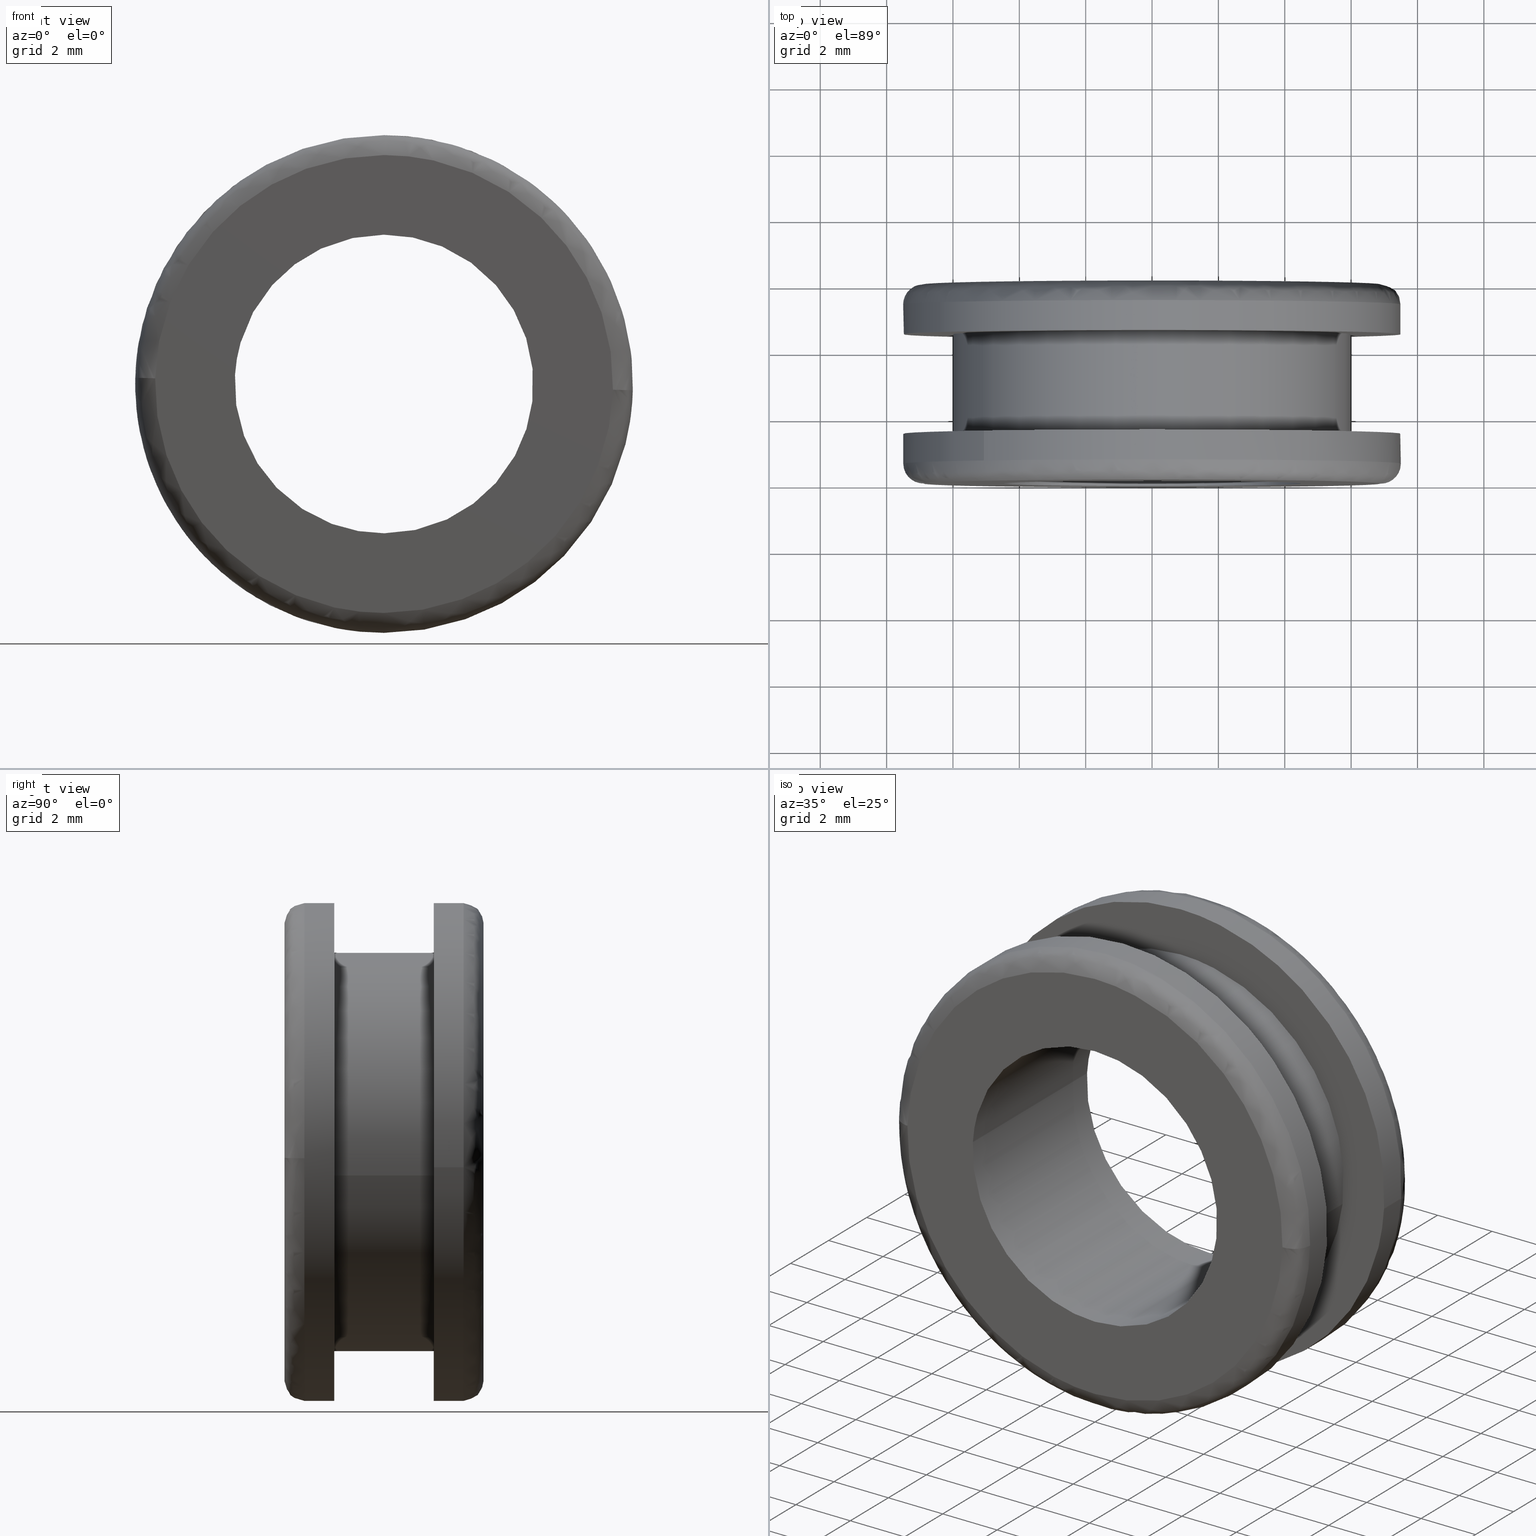
[diagram: canonical four-view strip — front | top / right | iso, engineering-drawing reading convention]
A machine part, canonical four-view strip (front | top / right | iso — engineering-drawing reading convention). The complete STEP part file that produces these views, byte-faithful:
ISO-10303-21;
HEADER;
/****************************************************************
 * Generated by software with PDE/Lib inside                    *
 * PDElib Version 4.4.1-0003, patched  Thursday August 19 11:58 *
 * International Technegroup Inc. (www.iti-oh.com)              *
 ****************************************************************/
FILE_DESCRIPTION((''),'2;1');
FILE_NAME('','2005-12-14T14:19:00',(''),(''),'','CADfix','');
FILE_SCHEMA(('AUTOMOTIVE_DESIGN'));
ENDSEC;
DATA;
#5=APPLICATION_CONTEXT('automotive design');
#6=APPLICATION_PROTOCOL_DEFINITION('Draft International Standard','automotive_design',1998,#5);
#7=PRODUCT_CONTEXT('None',#5,'mechanical');
#8=PRODUCT('grommet','','None',(#7));
#9=PRODUCT_RELATED_PRODUCT_CATEGORY('part','description',(#8));
#10=PRODUCT_DEFINITION_FORMATION('None','None',#8);
#11=PRODUCT_DEFINITION_CONTEXT('part definition',#5,'design');
#12=PRODUCT_DEFINITION('None','None',#10,#11);
#18=(NAMED_UNIT(*)PLANE_ANGLE_UNIT()SI_UNIT($,.RADIAN.));
#19=DIMENSIONAL_EXPONENTS(0.0,0.0,0.0,0.0,0.0,0.0,0.0);
#20=PLANE_ANGLE_MEASURE_WITH_UNIT(PLANE_ANGLE_MEASURE(0.017453292500000),#18);
#24=(CONVERSION_BASED_UNIT('DEGREE',#20)NAMED_UNIT(#19)PLANE_ANGLE_UNIT());
#28=(NAMED_UNIT(*)SI_UNIT($,.STERADIAN.)SOLID_ANGLE_UNIT());
#32=(LENGTH_UNIT()NAMED_UNIT(*)SI_UNIT(.MILLI.,.METRE.));
#34=UNCERTAINTY_MEASURE_WITH_UNIT(LENGTH_MEASURE(0.001000000000000),#32,'DISTANCE_ACCURACY_VALUE','');
#36=(GEOMETRIC_REPRESENTATION_CONTEXT(3)GLOBAL_UNCERTAINTY_ASSIGNED_CONTEXT((#34))GLOBAL_UNIT_ASSIGNED_CONTEXT((#24,#28,#32))REPRESENTATION_CONTEXT('None','None'));
#37=AXIS2_PLACEMENT_3D('',#38,#39,#40);
#38=CARTESIAN_POINT('',(0.0,0.0,0.0));
#39=DIRECTION('',(0.0,0.0,1.0));
#40=DIRECTION('',(1.0,0.0,0.0));
#41=ADVANCED_BREP_SHAPE_REPRESENTATION('',(#37,#1223),#36);
#42=PRODUCT_DEFINITION_SHAPE('','',#12);
#43=SHAPE_DEFINITION_REPRESENTATION(#42,#41);
#44=CARTESIAN_POINT('',(-4.907547427520285,1.522500000001033,-5.671505818267225));
#45=CARTESIAN_POINT('',(0.142881434838403,1.522500000001033,-10.041636073888654));
#46=CARTESIAN_POINT('',(5.066926557117450,1.522500000001033,-5.529580026075928));
#47=CARTESIAN_POINT('',(10.596506583193378,1.522500000001033,-0.462653468958478));
#48=CARTESIAN_POINT('',(5.529580026075928,1.522500000001033,5.066926557117450));
#49=CARTESIAN_POINT('',(0.462653468958478,1.522500000001033,10.596506583193378));
#50=CARTESIAN_POINT('',(-5.066926557117450,1.522500000001033,5.529580026075928));
#51=CARTESIAN_POINT('',(-4.907547427520285,0.576937499957637,-5.671505818267225));
#52=CARTESIAN_POINT('',(0.142881434838403,0.576937499957637,-10.041636073888654));
#53=CARTESIAN_POINT('',(5.066926557117450,0.576937499957637,-5.529580026075928));
#54=CARTESIAN_POINT('',(10.596506583193378,0.576937499957637,-0.462653468958478));
#55=CARTESIAN_POINT('',(5.529580026075928,0.576937499957637,5.066926557117450));
#56=CARTESIAN_POINT('',(0.462653468958478,0.576937499957637,10.596506583193378));
#57=CARTESIAN_POINT('',(-5.066926557117450,0.576937499957637,5.529580026075928));
#65=(BOUNDED_SURFACE()B_SPLINE_SURFACE(2,1,((#44,#51),(#45,#52),(#46,#53),(#47,#54),(#48,#55),(#49,#56),(#50,#57)),.UNSPECIFIED.,.F.,.F.,.U.)B_SPLINE_SURFACE_WITH_KNOTS((3,2,2,3),(2,2),(0.0,11.432294321497420,23.858701192690258,36.285108063883108),(0.0,1.0),.UNSPECIFIED.)GEOMETRIC_REPRESENTATION_ITEM()RATIONAL_B_SPLINE_SURFACE(((0.956886118190660,0.956886118190660),(0.730538238691624,0.730538238691624),(1.0,1.0),(0.707106781186548,0.707106781186548),(1.0,1.0),(0.707106781186548,0.707106781186548),(1.0,1.0)))REPRESENTATION_ITEM('')SURFACE());
#66=CARTESIAN_POINT('',(-4.907547179780115,1.500000000000008,-5.671506032636492));
#67=VERTEX_POINT('',#66);
#68=CARTESIAN_POINT('',(0.0,1.500000000000000,-7.500000000000000));
#69=VERTEX_POINT('',#68);
#70=CARTESIAN_POINT('',(-4.907547179780115,1.500000000000008,-5.671506032636492));
#71=CARTESIAN_POINT('',(-2.794411003575747,1.500000000000000,-7.500000000000000));
#72=CARTESIAN_POINT('',(0.0,1.500000000000000,-7.500000000000000));
#80=(BOUNDED_CURVE()B_SPLINE_CURVE(2,(#70,#71,#72),.UNSPECIFIED.,.F.,.U.)B_SPLINE_CURVE_WITH_KNOTS((3,3),(0.885882133147832,1.0),.UNSPECIFIED.)CURVE()GEOMETRIC_REPRESENTATION_ITEM()RATIONAL_B_SPLINE_CURVE((0.854663299575205,0.866302602614174,1.0))REPRESENTATION_ITEM(''));
#81=EDGE_CURVE('',#67,#69,#80,.T.);
#82=ORIENTED_EDGE('',*,*,#81,.T.);
#83=CARTESIAN_POINT('',(0.0,1.500000000000000,7.500000000000000));
#84=VERTEX_POINT('',#83);
#85=CARTESIAN_POINT('',(0.0,1.500000000000000,-7.500000000000000));
#86=CARTESIAN_POINT('',(7.500000000000000,1.500000000000000,-7.500000000000000));
#87=CARTESIAN_POINT('',(7.500000000000000,1.500000000000000,-1.928755E-016));
#88=CARTESIAN_POINT('',(7.500000000000000,1.500000000000000,7.500000000000000));
#89=CARTESIAN_POINT('',(0.0,1.500000000000000,7.500000000000000));
#97=(BOUNDED_CURVE()B_SPLINE_CURVE(2,(#85,#86,#87,#88,#89),.UNSPECIFIED.,.F.,.U.)B_SPLINE_CURVE_WITH_KNOTS((3,2,3),(0.0,0.250000000000000,0.500000000000000),.UNSPECIFIED.)CURVE()GEOMETRIC_REPRESENTATION_ITEM()RATIONAL_B_SPLINE_CURVE((1.0,0.707106781186547,1.0,0.707106781186547,1.0))REPRESENTATION_ITEM(''));
#98=EDGE_CURVE('',#69,#84,#97,.T.);
#99=ORIENTED_EDGE('',*,*,#98,.T.);
#100=CARTESIAN_POINT('',(-5.066926260055221,1.500000000000000,5.529580298283284));
#101=VERTEX_POINT('',#100);
#102=CARTESIAN_POINT('',(0.0,1.500000000000000,7.500000000000000));
#103=CARTESIAN_POINT('',(-2.916590025047635,1.500000000000000,7.500000000000000));
#104=CARTESIAN_POINT('',(-5.066926260055221,1.500000000000001,5.529580298283285));
#112=(BOUNDED_CURVE()B_SPLINE_CURVE(2,(#102,#103,#104),.UNSPECIFIED.,.F.,.U.)B_SPLINE_CURVE_WITH_KNOTS((3,3),(0.500000000000000,0.618415192864190),.UNSPECIFIED.)CURVE()GEOMETRIC_REPRESENTATION_ITEM()RATIONAL_B_SPLINE_CURVE((1.0,0.861267972022367,0.853959782840026))REPRESENTATION_ITEM(''));
#113=EDGE_CURVE('',#84,#101,#112,.T.);
#114=ORIENTED_EDGE('',*,*,#113,.T.);
#115=CARTESIAN_POINT('',(-5.066926246519454,0.599999999988853,5.529580310686487));
#116=VERTEX_POINT('',#115);
#117=CARTESIAN_POINT('',(-5.066926260055221,1.500000000000000,5.529580298283284));
#118=CARTESIAN_POINT('',(-5.066926246519454,0.599999999988853,5.529580310686487));
#119=QUASI_UNIFORM_CURVE('',1,(#117,#118),.UNSPECIFIED.,.F.,.U.);
#120=EDGE_CURVE('',#101,#116,#119,.T.);
#121=ORIENTED_EDGE('',*,*,#120,.T.);
#122=CARTESIAN_POINT('',(0.0,0.599999999999965,7.500000000000000));
#123=VERTEX_POINT('',#122);
#124=CARTESIAN_POINT('',(0.0,0.599999999999965,7.500000000000000));
#125=CARTESIAN_POINT('',(-2.916590003912102,0.599999999999965,7.499999999999999));
#126=CARTESIAN_POINT('',(-5.066926246519455,0.599999999988853,5.529580310686487));
#134=(BOUNDED_CURVE()B_SPLINE_CURVE(2,(#124,#125,#126),.UNSPECIFIED.,.F.,.U.)B_SPLINE_CURVE_WITH_KNOTS((3,3),(0.500000000000000,0.618415192125123),.UNSPECIFIED.)CURVE()GEOMETRIC_REPRESENTATION_ITEM()RATIONAL_B_SPLINE_CURVE((1.0,0.861267972888237,0.853959782931252))REPRESENTATION_ITEM(''));
#135=EDGE_CURVE('',#123,#116,#134,.T.);
#136=ORIENTED_EDGE('',*,*,#135,.F.);
#137=CARTESIAN_POINT('',(7.497631419624742,0.599999999958695,-0.188475715825333));
#138=VERTEX_POINT('',#137);
#139=CARTESIAN_POINT('',(7.497631419624742,0.599999999958695,-0.188475715825332));
#140=CARTESIAN_POINT('',(7.500000000000001,0.599999999999965,-0.094252740925648));
#141=CARTESIAN_POINT('',(7.500000000000000,0.599999999999965,-1.928755E-016));
#142=CARTESIAN_POINT('',(7.500000000000000,0.599999999999965,7.500000000000000));
#143=CARTESIAN_POINT('',(0.0,0.599999999999965,7.500000000000000));
#151=(BOUNDED_CURVE()B_SPLINE_CURVE(2,(#139,#140,#141,#142,#143),.UNSPECIFIED.,.F.,.U.)B_SPLINE_CURVE_WITH_KNOTS((3,2,3),(0.245579891769794,0.250000000000000,0.500000000000000),.UNSPECIFIED.)CURVE()GEOMETRIC_REPRESENTATION_ITEM()RATIONAL_B_SPLINE_CURVE((0.989826157681544,0.994821521091804,1.0,0.707106781186547,1.0))REPRESENTATION_ITEM(''));
#152=EDGE_CURVE('',#138,#123,#151,.T.);
#153=ORIENTED_EDGE('',*,*,#152,.F.);
#154=CARTESIAN_POINT('',(0.0,0.599999999999965,-7.500000000000000));
#155=VERTEX_POINT('',#154);
#156=CARTESIAN_POINT('',(0.0,0.599999999999965,-7.500000000000000));
#157=CARTESIAN_POINT('',(7.313834071354276,0.599999999999965,-7.500000000000000));
#158=CARTESIAN_POINT('',(7.497631419624742,0.599999999958695,-0.188475715825333));
#166=(BOUNDED_CURVE()B_SPLINE_CURVE(2,(#156,#157,#158),.UNSPECIFIED.,.F.,.U.)B_SPLINE_CURVE_WITH_KNOTS((3,3),(0.0,0.245579891769793),.UNSPECIFIED.)CURVE()GEOMETRIC_REPRESENTATION_ITEM()RATIONAL_B_SPLINE_CURVE((1.0,0.712285260094744,0.989826157681544))REPRESENTATION_ITEM(''));
#167=EDGE_CURVE('',#155,#138,#166,.T.);
#168=ORIENTED_EDGE('',*,*,#167,.F.);
#169=CARTESIAN_POINT('',(-4.907547182765222,0.599999999999965,-5.671506030053482));
#170=VERTEX_POINT('',#169);
#171=CARTESIAN_POINT('',(-4.907547182765222,0.599999999999965,-5.671506030053482));
#172=CARTESIAN_POINT('',(-2.794411008071252,0.599999999999965,-7.500000000000000));
#173=CARTESIAN_POINT('',(0.0,0.599999999999965,-7.500000000000000));
#181=(BOUNDED_CURVE()B_SPLINE_CURVE(2,(#171,#172,#173),.UNSPECIFIED.,.F.,.U.)B_SPLINE_CURVE_WITH_KNOTS((3,3),(0.885882132988790,1.0),.UNSPECIFIED.)CURVE()GEOMETRIC_REPRESENTATION_ITEM()RATIONAL_B_SPLINE_CURVE((0.854663299542762,0.866302602427844,1.0))REPRESENTATION_ITEM(''));
#182=EDGE_CURVE('',#170,#155,#181,.T.);
#183=ORIENTED_EDGE('',*,*,#182,.F.);
#184=CARTESIAN_POINT('',(-4.907547179780115,1.500000000000008,-5.671506032636492));
#185=CARTESIAN_POINT('',(-4.907547182765222,0.599999999999965,-5.671506030053482));
#186=QUASI_UNIFORM_CURVE('',1,(#184,#185),.UNSPECIFIED.,.F.,.U.);
#187=EDGE_CURVE('',#67,#170,#186,.T.);
#188=ORIENTED_EDGE('',*,*,#187,.F.);
#189=EDGE_LOOP('',(#82,#99,#114,#121,#136,#153,#168,#183,#188));
#190=FACE_OUTER_BOUND('',#189,.T.);
#191=ADVANCED_FACE('',(#190),#65,.T.);
#192=CARTESIAN_POINT('',(-5.066926557117450,1.522500000001033,5.529580026075928));
#193=CARTESIAN_POINT('',(-10.596506583193378,1.522500000001033,0.462653468958478));
#194=CARTESIAN_POINT('',(-5.529580026075928,1.522500000001033,-5.066926557117450));
#195=CARTESIAN_POINT('',(-5.236074104276847,1.522500000001033,-5.387232064690958));
#196=CARTESIAN_POINT('',(-4.907547427520285,1.522500000001033,-5.671505818267225));
#197=CARTESIAN_POINT('',(-5.066926557117450,0.576937499957637,5.529580026075928));
#198=CARTESIAN_POINT('',(-10.596506583193378,0.576937499957637,0.462653468958478));
#199=CARTESIAN_POINT('',(-5.529580026075928,0.576937499957637,-5.066926557117450));
#200=CARTESIAN_POINT('',(-5.236074104276847,0.576937499957637,-5.387232064690958));
#201=CARTESIAN_POINT('',(-4.907547427520285,0.576937499957637,-5.671505818267225));
#209=(BOUNDED_SURFACE()B_SPLINE_SURFACE(2,1,((#192,#197),(#193,#198),(#194,#199),(#195,#200),(#196,#201)),.UNSPECIFIED.,.F.,.F.,.U.)B_SPLINE_SURFACE_WITH_KNOTS((3,2,3),(2,2),(0.0,12.426406871192849,13.420519420888279),(0.0,1.0),.UNSPECIFIED.)GEOMETRIC_REPRESENTATION_ITEM()RATIONAL_B_SPLINE_SURFACE(((1.0,1.0),(0.707106781186548,0.707106781186548),(1.0,1.0),(0.976568542494924,0.976568542494924),(0.956886118190660,0.956886118190660)))REPRESENTATION_ITEM('')SURFACE());
#210=CARTESIAN_POINT('',(-5.066926260055221,1.500000000000000,5.529580298283285));
#211=CARTESIAN_POINT('',(-7.500000000000002,1.500000000000000,3.300079462615269));
#212=CARTESIAN_POINT('',(-7.500000000000000,1.500000000000000,-1.928755E-016));
#213=CARTESIAN_POINT('',(-7.500000000000000,1.500000000000000,-3.428260000589010));
#214=CARTESIAN_POINT('',(-4.907547179780115,1.500000000000008,-5.671506032636493));
#222=(BOUNDED_CURVE()B_SPLINE_CURVE(2,(#210,#211,#212,#213,#214),.UNSPECIFIED.,.F.,.U.)B_SPLINE_CURVE_WITH_KNOTS((3,2,3),(0.618415192864190,0.750000000000000,0.885882133147832),.UNSPECIFIED.)CURVE()GEOMETRIC_REPRESENTATION_ITEM()RATIONAL_B_SPLINE_CURVE((0.853959782840026,0.845838809164180,1.0,0.840804178572373,0.854663299575205))REPRESENTATION_ITEM(''));
#223=EDGE_CURVE('',#101,#67,#222,.T.);
#224=ORIENTED_EDGE('',*,*,#223,.T.);
#225=ORIENTED_EDGE('',*,*,#187,.T.);
#226=CARTESIAN_POINT('',(-7.497631419624741,0.599999999958695,0.188475715825333));
#227=VERTEX_POINT('',#226);
#228=CARTESIAN_POINT('',(-7.497631419624742,0.599999999958695,0.188475715825333));
#229=CARTESIAN_POINT('',(-7.500000000000000,0.599999999999965,0.094252740925649));
#230=CARTESIAN_POINT('',(-7.500000000000000,0.599999999999965,-1.928755E-016));
#231=CARTESIAN_POINT('',(-7.499999999999999,0.599999999999965,-3.428259995816707));
#232=CARTESIAN_POINT('',(-4.907547182765222,0.599999999999965,-5.671506030053482));
#240=(BOUNDED_CURVE()B_SPLINE_CURVE(2,(#228,#229,#230,#231,#232),.UNSPECIFIED.,.F.,.U.)B_SPLINE_CURVE_WITH_KNOTS((3,2,3),(0.745579891769793,0.750000000000000,0.885882132988790),.UNSPECIFIED.)CURVE()GEOMETRIC_REPRESENTATION_ITEM()RATIONAL_B_SPLINE_CURVE((0.989826157681544,0.994821521091804,1.0,0.840804178758702,0.854663299542762))REPRESENTATION_ITEM(''));
#241=EDGE_CURVE('',#227,#170,#240,.T.);
#242=ORIENTED_EDGE('',*,*,#241,.F.);
#243=CARTESIAN_POINT('',(-5.066926246519454,0.599999999988853,5.529580310686487));
#244=CARTESIAN_POINT('',(-7.417511719664617,0.599999999976685,3.375666050243386));
#245=CARTESIAN_POINT('',(-7.497631419624741,0.599999999958695,0.188475715825333));
#253=(BOUNDED_CURVE()B_SPLINE_CURVE(2,(#243,#244,#245),.UNSPECIFIED.,.F.,.U.)B_SPLINE_CURVE_WITH_KNOTS((3,3),(0.618415192125124,0.745579891769794),.UNSPECIFIED.)CURVE()GEOMETRIC_REPRESENTATION_ITEM()RATIONAL_B_SPLINE_CURVE((0.853959782931252,0.846111602607868,0.989826157681545))REPRESENTATION_ITEM(''));
#254=EDGE_CURVE('',#116,#227,#253,.T.);
#255=ORIENTED_EDGE('',*,*,#254,.F.);
#256=ORIENTED_EDGE('',*,*,#120,.F.);
#257=EDGE_LOOP('',(#224,#225,#242,#255,#256));
#258=FACE_OUTER_BOUND('',#257,.T.);
#259=ADVANCED_FACE('',(#258),#209,.T.);
#260=CARTESIAN_POINT('',(5.958057158181998,4.575000000000001,-0.708205407940551));
#261=CARTESIAN_POINT('',(5.978325692691634,4.575000000000001,-0.537688371827866));
#262=CARTESIAN_POINT('',(5.988808790531200,4.575000000000001,-0.366291237209142));
#263=CARTESIAN_POINT('',(6.355100027740342,4.575000000000001,5.622517553322058));
#264=CARTESIAN_POINT('',(0.366291237209142,4.575000000000001,5.988808790531200));
#265=CARTESIAN_POINT('',(-5.622517553322059,4.575000000000001,6.355100027740342));
#266=CARTESIAN_POINT('',(-5.988808790531200,4.575000000000001,0.366291237209142));
#267=CARTESIAN_POINT('',(5.958057158181998,1.423125000000000,-0.708205407940551));
#268=CARTESIAN_POINT('',(5.978325692691634,1.423125000000000,-0.537688371827866));
#269=CARTESIAN_POINT('',(5.988808790531200,1.423125000000000,-0.366291237209142));
#270=CARTESIAN_POINT('',(6.355100027740342,1.423124999999999,5.622517553322058));
#271=CARTESIAN_POINT('',(0.366291237209142,1.423125000000000,5.988808790531200));
#272=CARTESIAN_POINT('',(-5.622517553322059,1.423124999999999,6.355100027740342));
#273=CARTESIAN_POINT('',(-5.988808790531200,1.423125000000000,0.366291237209142));
#281=(BOUNDED_SURFACE()B_SPLINE_SURFACE(2,1,((#260,#267),(#261,#268),(#262,#269),(#263,#270),(#264,#271),(#265,#272),(#266,#273)),.UNSPECIFIED.,.F.,.F.,.U.)B_SPLINE_SURFACE_WITH_KNOTS((3,2,2,3),(2,2),(0.0,0.397645019878172,10.338770516832451,20.279896013786729),(0.0,3.151875000000002),.UNSPECIFIED.)GEOMETRIC_REPRESENTATION_ITEM()RATIONAL_B_SPLINE_SURFACE(((0.977505800795127,0.977505800795127),(0.988284271247462,0.988284271247462),(1.0,1.0),(0.707106781186548,0.707106781186548),(1.0,1.0),(0.707106781186548,0.707106781186548),(1.0,1.0)))REPRESENTATION_ITEM('')SURFACE());
#282=CARTESIAN_POINT('',(5.958057871799833,1.499999999999981,-0.708199404297607));
#283=VERTEX_POINT('',#282);
#284=CARTESIAN_POINT('',(0.0,1.500000000000000,6.0));
#285=VERTEX_POINT('',#284);
#286=CARTESIAN_POINT('',(5.958057871799833,1.499999999999981,-0.708199404297607));
#287=CARTESIAN_POINT('',(6.0,1.500000000000000,-0.355341684355569));
#288=CARTESIAN_POINT('',(6.0,1.500000000000000,-1.928755E-016));
#289=CARTESIAN_POINT('',(6.0,1.500000000000000,6.0));
#290=CARTESIAN_POINT('',(0.0,1.500000000000000,6.0));
#298=(BOUNDED_CURVE()B_SPLINE_CURVE(2,(#286,#287,#288,#289,#290),.UNSPECIFIED.,.F.,.U.)B_SPLINE_CURVE_WITH_KNOTS((3,2,3),(0.229562643811967,0.250000000000000,0.500000000000000),.UNSPECIFIED.)CURVE()GEOMETRIC_REPRESENTATION_ITEM()RATIONAL_B_SPLINE_CURVE((0.956027087975920,0.976056147848200,1.0,0.707106781186548,1.0))REPRESENTATION_ITEM(''));
#299=EDGE_CURVE('',#283,#285,#298,.T.);
#300=ORIENTED_EDGE('',*,*,#299,.F.);
#301=CARTESIAN_POINT('',(5.958057862993353,4.500000000000000,-0.708199478386858));
#302=VERTEX_POINT('',#301);
#303=CARTESIAN_POINT('',(5.958057862993353,4.500000000000000,-0.708199478386858));
#304=CARTESIAN_POINT('',(5.958057871799833,1.499999999999981,-0.708199404297607));
#305=QUASI_UNIFORM_CURVE('',1,(#303,#304),.UNSPECIFIED.,.F.,.U.);
#306=EDGE_CURVE('',#302,#283,#305,.T.);
#307=ORIENTED_EDGE('',*,*,#306,.F.);
#308=CARTESIAN_POINT('',(0.0,4.500000000000000,6.0));
#309=VERTEX_POINT('',#308);
#310=CARTESIAN_POINT('',(5.958057862993353,4.500000000000000,-0.708199478386858));
#311=CARTESIAN_POINT('',(5.999999999999999,4.500000000000000,-0.355341721791815));
#312=CARTESIAN_POINT('',(6.0,4.500000000000000,-1.928755E-016));
#313=CARTESIAN_POINT('',(6.0,4.500000000000000,6.0));
#314=CARTESIAN_POINT('',(0.0,4.500000000000000,6.0));
#322=(BOUNDED_CURVE()B_SPLINE_CURVE(2,(#310,#311,#312,#313,#314),.UNSPECIFIED.,.F.,.U.)B_SPLINE_CURVE_WITH_KNOTS((3,2,3),(0.229562641710389,0.250000000000000,0.500000000000000),.UNSPECIFIED.)CURVE()GEOMETRIC_REPRESENTATION_ITEM()RATIONAL_B_SPLINE_CURVE((0.956027083856733,0.976056145386048,1.0,0.707106781186548,1.0))REPRESENTATION_ITEM(''));
#323=EDGE_CURVE('',#302,#309,#322,.T.);
#324=ORIENTED_EDGE('',*,*,#323,.T.);
#325=CARTESIAN_POINT('',(-5.988809020612538,4.500000000000000,0.366287475373750));
#326=VERTEX_POINT('',#325);
#327=CARTESIAN_POINT('',(0.0,4.500000000000000,6.0));
#328=CARTESIAN_POINT('',(-5.644239953454565,4.500000000000002,6.0));
#329=CARTESIAN_POINT('',(-5.988809020612538,4.500000000000000,0.366287475373750));
#337=(BOUNDED_CURVE()B_SPLINE_CURVE(2,(#327,#328,#329),.UNSPECIFIED.,.F.,.U.)B_SPLINE_CURVE_WITH_KNOTS((3,3),(0.500000000000000,0.739333070626239),.UNSPECIFIED.)CURVE()GEOMETRIC_REPRESENTATION_ITEM()RATIONAL_B_SPLINE_CURVE((1.0,0.719603866303094,0.976072273961436))REPRESENTATION_ITEM(''));
#338=EDGE_CURVE('',#309,#326,#337,.T.);
#339=ORIENTED_EDGE('',*,*,#338,.T.);
#340=CARTESIAN_POINT('',(-5.988809023484412,1.500000000000026,0.366287428418065));
#341=VERTEX_POINT('',#340);
#342=CARTESIAN_POINT('',(-5.988809020612538,4.500000000000000,0.366287475373750));
#343=CARTESIAN_POINT('',(-5.988809023484412,1.500000000000026,0.366287428418065));
#344=QUASI_UNIFORM_CURVE('',1,(#342,#343),.UNSPECIFIED.,.F.,.U.);
#345=EDGE_CURVE('',#326,#341,#344,.T.);
#346=ORIENTED_EDGE('',*,*,#345,.T.);
#347=CARTESIAN_POINT('',(0.0,1.500000000000000,6.0));
#348=CARTESIAN_POINT('',(-5.644239997791325,1.500000000000000,6.0));
#349=CARTESIAN_POINT('',(-5.988809023484412,1.500000000000026,0.366287428418065));
#357=(BOUNDED_CURVE()B_SPLINE_CURVE(2,(#347,#348,#349),.UNSPECIFIED.,.F.,.U.)B_SPLINE_CURVE_WITH_KNOTS((3,3),(0.500000000000000,0.739333071979105),.UNSPECIFIED.)CURVE()GEOMETRIC_REPRESENTATION_ITEM()RATIONAL_B_SPLINE_CURVE((1.0,0.719603864718113,0.976072276860887))REPRESENTATION_ITEM(''));
#358=EDGE_CURVE('',#285,#341,#357,.T.);
#359=ORIENTED_EDGE('',*,*,#358,.F.);
#360=EDGE_LOOP('',(#300,#307,#324,#339,#346,#359));
#361=FACE_OUTER_BOUND('',#360,.T.);
#362=ADVANCED_FACE('',(#361),#281,.T.);
#363=CARTESIAN_POINT('',(-5.988808790531200,4.575000000000001,0.366291237209142));
#364=CARTESIAN_POINT('',(-6.355100027740342,4.575000000000001,-5.622517553322059));
#365=CARTESIAN_POINT('',(-0.366291237209142,4.575000000000001,-5.988808790531200));
#366=CARTESIAN_POINT('',(5.289260945037006,4.575000000000003,-6.334717180395166));
#367=CARTESIAN_POINT('',(5.958057158181998,4.575000000000001,-0.708205407940551));
#368=CARTESIAN_POINT('',(-5.988808790531200,1.423125000000000,0.366291237209142));
#369=CARTESIAN_POINT('',(-6.355100027740342,1.423124999999999,-5.622517553322059));
#370=CARTESIAN_POINT('',(-0.366291237209142,1.423125000000000,-5.988808790531200));
#371=CARTESIAN_POINT('',(5.289260945037006,1.423125000000000,-6.334717180395166));
#372=CARTESIAN_POINT('',(5.958057158181998,1.423125000000000,-0.708205407940551));
#380=(BOUNDED_SURFACE()B_SPLINE_SURFACE(2,1,((#363,#368),(#364,#369),(#365,#370),(#366,#371),(#367,#372)),.UNSPECIFIED.,.F.,.F.,.U.)B_SPLINE_SURFACE_WITH_KNOTS((3,2,3),(2,2),(0.0,9.941125496954278,19.484605974030391),(0.0,3.151875000000002),.UNSPECIFIED.)GEOMETRIC_REPRESENTATION_ITEM()RATIONAL_B_SPLINE_SURFACE(((1.0,1.0),(0.707106781186548,0.707106781186548),(1.0,1.0),(0.718822509939086,0.718822509939086),(0.977505800795127,0.977505800795127)))REPRESENTATION_ITEM('')SURFACE());
#381=CARTESIAN_POINT('',(0.0,1.500000000000000,-6.0));
#382=VERTEX_POINT('',#381);
#383=CARTESIAN_POINT('',(0.0,1.500000000000000,-6.0));
#384=CARTESIAN_POINT('',(5.329052563332131,1.500000000000000,-6.0));
#385=CARTESIAN_POINT('',(5.958057871799833,1.499999999999981,-0.708199404297607));
#393=(BOUNDED_CURVE()B_SPLINE_CURVE(2,(#383,#384,#385),.UNSPECIFIED.,.F.,.U.)B_SPLINE_CURVE_WITH_KNOTS((3,3),(0.0,0.229562643811967),.UNSPECIFIED.)CURVE()GEOMETRIC_REPRESENTATION_ITEM()RATIONAL_B_SPLINE_CURVE((1.0,0.731050633338347,0.956027087975920))REPRESENTATION_ITEM(''));
#394=EDGE_CURVE('',#382,#283,#393,.T.);
#395=ORIENTED_EDGE('',*,*,#394,.F.);
#396=CARTESIAN_POINT('',(-5.988809023484412,1.500000000000026,0.366287428418065));
#397=CARTESIAN_POINT('',(-6.0,1.500000000000000,0.183314670056348));
#398=CARTESIAN_POINT('',(-6.0,1.500000000000000,-1.928755E-016));
#399=CARTESIAN_POINT('',(-6.0,1.500000000000000,-6.0));
#400=CARTESIAN_POINT('',(0.0,1.500000000000000,-6.0));
#408=(BOUNDED_CURVE()B_SPLINE_CURVE(2,(#396,#397,#398,#399,#400),.UNSPECIFIED.,.F.,.U.)B_SPLINE_CURVE_WITH_KNOTS((3,2,3),(0.739333071979105,0.750000000000000,1.0),.UNSPECIFIED.)CURVE()GEOMETRIC_REPRESENTATION_ITEM()RATIONAL_B_SPLINE_CURVE((0.976072276860887,0.987502916468434,1.0,0.707106781186548,1.0))REPRESENTATION_ITEM(''));
#409=EDGE_CURVE('',#341,#382,#408,.T.);
#410=ORIENTED_EDGE('',*,*,#409,.F.);
#411=ORIENTED_EDGE('',*,*,#345,.F.);
#412=CARTESIAN_POINT('',(0.0,4.500000000000000,-6.0));
#413=VERTEX_POINT('',#412);
#414=CARTESIAN_POINT('',(-5.988809020612538,4.500000000000000,0.366287475373750));
#415=CARTESIAN_POINT('',(-6.0,4.500000000000000,0.183314693600018));
#416=CARTESIAN_POINT('',(-6.0,4.500000000000000,-1.928755E-016));
#417=CARTESIAN_POINT('',(-6.0,4.500000000000000,-6.0));
#418=CARTESIAN_POINT('',(0.0,4.500000000000000,-6.0));
#426=(BOUNDED_CURVE()B_SPLINE_CURVE(2,(#414,#415,#416,#417,#418),.UNSPECIFIED.,.F.,.U.)B_SPLINE_CURVE_WITH_KNOTS((3,2,3),(0.739333070626239,0.750000000000000,1.0),.UNSPECIFIED.)CURVE()GEOMETRIC_REPRESENTATION_ITEM()RATIONAL_B_SPLINE_CURVE((0.976072273961436,0.987502914883454,1.0,0.707106781186548,1.0))REPRESENTATION_ITEM(''));
#427=EDGE_CURVE('',#326,#413,#426,.T.);
#428=ORIENTED_EDGE('',*,*,#427,.T.);
#429=CARTESIAN_POINT('',(0.0,4.500000000000000,-6.0));
#430=CARTESIAN_POINT('',(5.329052496598160,4.500000000000001,-6.000000000000001));
#431=CARTESIAN_POINT('',(5.958057862993353,4.500000000000000,-0.708199478386858));
#439=(BOUNDED_CURVE()B_SPLINE_CURVE(2,(#429,#430,#431),.UNSPECIFIED.,.F.,.U.)B_SPLINE_CURVE_WITH_KNOTS((3,3),(0.0,0.229562641710389),.UNSPECIFIED.)CURVE()GEOMETRIC_REPRESENTATION_ITEM()RATIONAL_B_SPLINE_CURVE((1.0,0.731050635800500,0.956027083856733))REPRESENTATION_ITEM(''));
#440=EDGE_CURVE('',#413,#302,#439,.T.);
#441=ORIENTED_EDGE('',*,*,#440,.T.);
#442=ORIENTED_EDGE('',*,*,#306,.T.);
#443=EDGE_LOOP('',(#395,#410,#411,#428,#441,#442));
#444=FACE_OUTER_BOUND('',#443,.T.);
#445=ADVANCED_FACE('',(#444),#380,.T.);
#446=CARTESIAN_POINT('',(2.637134807936786,5.422500000010266,7.021076840824930));
#447=CARTESIAN_POINT('',(1.582420887865558,5.422500000010267,7.417230145238629));
#448=CARTESIAN_POINT('',(0.457864046511423,5.422500000010266,7.486010988164000));
#449=CARTESIAN_POINT('',(-7.028146941652577,5.422500000010265,7.943875034675423));
#450=CARTESIAN_POINT('',(-7.486010988164000,5.422500000010266,0.457864046511423));
#451=CARTESIAN_POINT('',(-7.943875034675423,5.422500000010265,-7.028146941652577));
#452=CARTESIAN_POINT('',(-0.457864046511423,5.422500000010266,-7.486010988164000));
#453=CARTESIAN_POINT('',(7.028146941652577,5.422500000010265,-7.943875034675423));
#454=CARTESIAN_POINT('',(7.486010988164000,5.422500000010266,-0.457864046511423));
#455=CARTESIAN_POINT('',(2.637134807936786,4.476937499999742,7.021076840824930));
#456=CARTESIAN_POINT('',(1.582420887865558,4.476937499999742,7.417230145238629));
#457=CARTESIAN_POINT('',(0.457864046511423,4.476937499999742,7.486010988164000));
#458=CARTESIAN_POINT('',(-7.028146941652577,4.476937499999742,7.943875034675423));
#459=CARTESIAN_POINT('',(-7.486010988164000,4.476937499999742,0.457864046511423));
#460=CARTESIAN_POINT('',(-7.943875034675423,4.476937499999742,-7.028146941652577));
#461=CARTESIAN_POINT('',(-0.457864046511423,4.476937499999742,-7.486010988164000));
#462=CARTESIAN_POINT('',(7.028146941652577,4.476937499999742,-7.943875034675423));
#463=CARTESIAN_POINT('',(7.486010988164000,4.476937499999742,-0.457864046511423));
#471=(BOUNDED_SURFACE()B_SPLINE_SURFACE(2,1,((#446,#455),(#447,#456),(#448,#457),(#449,#458),(#450,#459),(#451,#460),(#452,#461),(#453,#462),(#454,#463)),.UNSPECIFIED.,.F.,.F.,.U.)B_SPLINE_SURFACE_WITH_KNOTS((3,2,2,2,3),(2,2),(0.0,2.485281374238570,14.911688245431421,27.338095116624270,39.764501987817120),(0.0,1.0),.UNSPECIFIED.)GEOMETRIC_REPRESENTATION_ITEM()RATIONAL_B_SPLINE_SURFACE(((0.906274169979695,0.906274169979695),(0.941421356237309,0.941421356237309),(1.0,1.0),(0.707106781186548,0.707106781186548),(1.0,1.0),(0.707106781186548,0.707106781186548),(1.0,1.0),(0.707106781186548,0.707106781186548),(1.0,1.0)))REPRESENTATION_ITEM('')SURFACE());
#472=CARTESIAN_POINT('',(2.637130652825845,4.499999999999998,7.021078401492652));
#473=VERTEX_POINT('',#472);
#474=CARTESIAN_POINT('',(0.0,4.500000000000000,7.500000000000000));
#475=VERTEX_POINT('',#474);
#476=CARTESIAN_POINT('',(2.637130652825845,4.499999999999998,7.021078401492652));
#477=CARTESIAN_POINT('',(1.362053103036931,4.499999999999999,7.499999999999999));
#478=CARTESIAN_POINT('',(0.0,4.500000000000000,7.500000000000000));
#486=(BOUNDED_CURVE()B_SPLINE_CURVE(2,(#476,#477,#478),.UNSPECIFIED.,.F.,.U.)B_SPLINE_CURVE_WITH_KNOTS((3,3),(0.440284264374492,0.500000000000000),.UNSPECIFIED.)CURVE()GEOMETRIC_REPRESENTATION_ITEM()RATIONAL_B_SPLINE_CURVE((0.893499669027772,0.930038663915327,1.0))REPRESENTATION_ITEM(''));
#487=EDGE_CURVE('',#473,#475,#486,.T.);
#488=ORIENTED_EDGE('',*,*,#487,.F.);
#489=CARTESIAN_POINT('',(2.637130704092848,5.400000000000000,7.021078382236700));
#490=VERTEX_POINT('',#489);
#491=CARTESIAN_POINT('',(2.637130704092848,5.400000000000000,7.021078382236700));
#492=CARTESIAN_POINT('',(2.637130652825845,4.499999999999998,7.021078401492652));
#493=QUASI_UNIFORM_CURVE('',1,(#491,#492),.UNSPECIFIED.,.F.,.U.);
#494=EDGE_CURVE('',#490,#473,#493,.T.);
#495=ORIENTED_EDGE('',*,*,#494,.F.);
#496=CARTESIAN_POINT('',(0.0,5.400000000000000,7.500000000000000));
#497=VERTEX_POINT('',#496);
#498=CARTESIAN_POINT('',(2.637130704092848,5.400000000000000,7.021078382236701));
#499=CARTESIAN_POINT('',(1.362053131322029,5.400000000000000,7.500000000000000));
#500=CARTESIAN_POINT('',(0.0,5.400000000000000,7.500000000000000));
#508=(BOUNDED_CURVE()B_SPLINE_CURVE(2,(#498,#499,#500),.UNSPECIFIED.,.F.,.U.)B_SPLINE_CURVE_WITH_KNOTS((3,3),(0.440284263221162,0.500000000000000),.UNSPECIFIED.)CURVE()GEOMETRIC_REPRESENTATION_ITEM()RATIONAL_B_SPLINE_CURVE((0.893499667616368,0.930038662564118,1.0))REPRESENTATION_ITEM(''));
#509=EDGE_CURVE('',#490,#497,#508,.T.);
#510=ORIENTED_EDGE('',*,*,#509,.T.);
#511=CARTESIAN_POINT('',(-7.499999999999998,5.400000000010016,4.329470E-016));
#512=VERTEX_POINT('',#511);
#513=CARTESIAN_POINT('',(0.0,5.400000000000000,7.500000000000000));
#514=CARTESIAN_POINT('',(-7.499999999999963,5.400000000000000,7.500000000000000));
#515=CARTESIAN_POINT('',(-7.499999999999998,5.400000000010016,4.329470E-016));
#523=(BOUNDED_CURVE()B_SPLINE_CURVE(2,(#513,#514,#515),.UNSPECIFIED.,.F.,.U.)B_SPLINE_CURVE_WITH_KNOTS((3,3),(0.500000000000000,0.749999999999999),.UNSPECIFIED.)CURVE()GEOMETRIC_REPRESENTATION_ITEM()RATIONAL_B_SPLINE_CURVE((1.0,0.707106781186548,0.999999999999998))REPRESENTATION_ITEM(''));
#524=EDGE_CURVE('',#497,#512,#523,.T.);
#525=ORIENTED_EDGE('',*,*,#524,.T.);
#526=CARTESIAN_POINT('',(-2.649764749950935,5.400000000009606,-7.016320030465931));
#527=VERTEX_POINT('',#526);
#528=CARTESIAN_POINT('',(-7.499999999999998,5.400000000010016,4.329470E-016));
#529=CARTESIAN_POINT('',(-7.500000000000000,5.400000000000000,-5.184593094017047));
#530=CARTESIAN_POINT('',(-2.649764749950935,5.400000000009606,-7.016320030465931));
#538=(BOUNDED_CURVE()B_SPLINE_CURVE(2,(#528,#529,#530),.UNSPECIFIED.,.F.,.U.)B_SPLINE_CURVE_WITH_KNOTS((3,3),(0.750000000000000,0.939999999999992),.UNSPECIFIED.)CURVE()GEOMETRIC_REPRESENTATION_ITEM()RATIONAL_B_SPLINE_CURVE((1.0,0.777401153701785,0.893152553776843))REPRESENTATION_ITEM(''));
#539=EDGE_CURVE('',#512,#527,#538,.T.);
#540=ORIENTED_EDGE('',*,*,#539,.T.);
#541=CARTESIAN_POINT('',(0.0,5.400000000000000,-7.500000000000000));
#542=VERTEX_POINT('',#541);
#543=CARTESIAN_POINT('',(-2.649764749950935,5.400000000009607,-7.016320030465931));
#544=CARTESIAN_POINT('',(-1.369027107622649,5.400000000000000,-7.500000000000000));
#545=CARTESIAN_POINT('',(0.0,5.400000000000000,-7.500000000000000));
#553=(BOUNDED_CURVE()B_SPLINE_CURVE(2,(#543,#544,#545),.UNSPECIFIED.,.F.,.U.)B_SPLINE_CURVE_WITH_KNOTS((3,3),(0.939999999999992,1.0),.UNSPECIFIED.)CURVE()GEOMETRIC_REPRESENTATION_ITEM()RATIONAL_B_SPLINE_CURVE((0.893152553776842,0.929705627484762,1.0))REPRESENTATION_ITEM(''));
#554=EDGE_CURVE('',#527,#542,#553,.T.);
#555=ORIENTED_EDGE('',*,*,#554,.T.);
#556=CARTESIAN_POINT('',(7.486011298833336,5.400000000000000,-0.457858967056126));
#557=VERTEX_POINT('',#556);
#558=CARTESIAN_POINT('',(0.0,5.400000000000000,-7.500000000000000));
#559=CARTESIAN_POINT('',(7.055300297943345,5.400000000000000,-7.499999999999999));
#560=CARTESIAN_POINT('',(7.486011298833336,5.400000000000000,-0.457858967056127));
#568=(BOUNDED_CURVE()B_SPLINE_CURVE(2,(#558,#559,#560),.UNSPECIFIED.,.F.,.U.)B_SPLINE_CURVE_WITH_KNOTS((3,3),(0.0,0.239333079319513),.UNSPECIFIED.)CURVE()GEOMETRIC_REPRESENTATION_ITEM()RATIONAL_B_SPLINE_CURVE((1.0,0.719603856118290,0.976072292592794))REPRESENTATION_ITEM(''));
#569=EDGE_CURVE('',#542,#557,#568,.T.);
#570=ORIENTED_EDGE('',*,*,#569,.T.);
#571=CARTESIAN_POINT('',(7.486011302712274,4.500000000000102,-0.457858903634632));
#572=VERTEX_POINT('',#571);
#573=CARTESIAN_POINT('',(7.486011298833336,5.400000000000000,-0.457858967056126));
#574=CARTESIAN_POINT('',(7.486011302712274,4.500000000000102,-0.457858903634632));
#575=QUASI_UNIFORM_CURVE('',1,(#573,#574),.UNSPECIFIED.,.F.,.U.);
#576=EDGE_CURVE('',#557,#572,#575,.T.);
#577=ORIENTED_EDGE('',*,*,#576,.T.);
#578=CARTESIAN_POINT('',(0.0,4.500000000000000,-7.500000000000000));
#579=VERTEX_POINT('',#578);
#580=CARTESIAN_POINT('',(0.0,4.500000000000000,-7.500000000000000));
#581=CARTESIAN_POINT('',(7.055300357827547,4.500000000000001,-7.500000000000000));
#582=CARTESIAN_POINT('',(7.486011302712274,4.500000000000102,-0.457858903634633));
#590=(BOUNDED_CURVE()B_SPLINE_CURVE(2,(#580,#581,#582),.UNSPECIFIED.,.F.,.U.)B_SPLINE_CURVE_WITH_KNOTS((3,3),(0.0,0.239333080781329),.UNSPECIFIED.)CURVE()GEOMETRIC_REPRESENTATION_ITEM()RATIONAL_B_SPLINE_CURVE((1.0,0.719603854405665,0.976072295725749))REPRESENTATION_ITEM(''));
#591=EDGE_CURVE('',#579,#572,#590,.T.);
#592=ORIENTED_EDGE('',*,*,#591,.F.);
#593=CARTESIAN_POINT('',(0.0,4.500000000000000,7.500000000000000));
#594=CARTESIAN_POINT('',(-7.500000000000000,4.500000000000000,7.500000000000000));
#595=CARTESIAN_POINT('',(-7.500000000000000,4.500000000000000,-1.928755E-016));
#596=CARTESIAN_POINT('',(-7.500000000000000,4.500000000000000,-7.500000000000000));
#597=CARTESIAN_POINT('',(0.0,4.500000000000000,-7.500000000000000));
#605=(BOUNDED_CURVE()B_SPLINE_CURVE(2,(#593,#594,#595,#596,#597),.UNSPECIFIED.,.F.,.U.)B_SPLINE_CURVE_WITH_KNOTS((3,2,3),(0.500000000000000,0.750000000000000,1.0),.UNSPECIFIED.)CURVE()GEOMETRIC_REPRESENTATION_ITEM()RATIONAL_B_SPLINE_CURVE((1.0,0.707106781186547,1.0,0.707106781186547,1.0))REPRESENTATION_ITEM(''));
#606=EDGE_CURVE('',#475,#579,#605,.T.);
#607=ORIENTED_EDGE('',*,*,#606,.F.);
#608=EDGE_LOOP('',(#488,#495,#510,#525,#540,#555,#570,#577,#592,#607));
#609=FACE_OUTER_BOUND('',#608,.T.);
#610=ADVANCED_FACE('',(#609),#471,.T.);
#611=CARTESIAN_POINT('',(7.486010988164000,5.422500000010266,-0.457864046511423));
#612=CARTESIAN_POINT('',(7.824279171520059,5.422500000010266,5.072771863522993));
#613=CARTESIAN_POINT('',(2.637134807936786,5.422500000010266,7.021076840824930));
#614=CARTESIAN_POINT('',(7.486010988164000,4.476937499999742,-0.457864046511423));
#615=CARTESIAN_POINT('',(7.824279171520059,4.476937499999743,5.072771863522993));
#616=CARTESIAN_POINT('',(2.637134807936786,4.476937499999742,7.021076840824930));
#624=(BOUNDED_SURFACE()B_SPLINE_SURFACE(2,1,((#611,#614),(#612,#615),(#613,#616)),.UNSPECIFIED.,.F.,.F.,.U.)B_SPLINE_SURFACE_WITH_KNOTS((3,3),(2,2),(0.0,9.873365429149846),(0.0,1.0),.UNSPECIFIED.)GEOMETRIC_REPRESENTATION_ITEM()RATIONAL_B_SPLINE_SURFACE(((1.0,1.0),(0.765685424949238,0.765685424949238),(0.906274169979695,0.906274169979695)))REPRESENTATION_ITEM('')SURFACE());
#625=CARTESIAN_POINT('',(7.486011302712274,4.500000000000102,-0.457858903634633));
#626=CARTESIAN_POINT('',(7.500000000000000,4.500000000000000,-0.229143146091092));
#627=CARTESIAN_POINT('',(7.500000000000000,4.500000000000000,-1.928755E-016));
#628=CARTESIAN_POINT('',(7.499999999999999,4.500000000000000,5.194575251579957));
#629=CARTESIAN_POINT('',(2.637130652825845,4.499999999999998,7.021078401492652));
#637=(BOUNDED_CURVE()B_SPLINE_CURVE(2,(#625,#626,#627,#628,#629),.UNSPECIFIED.,.F.,.U.)B_SPLINE_CURVE_WITH_KNOTS((3,2,3),(0.239333080781329,0.250000000000000,0.440284264374492),.UNSPECIFIED.)CURVE()GEOMETRIC_REPRESENTATION_ITEM()RATIONAL_B_SPLINE_CURVE((0.976072295725749,0.987502926780882,1.0,0.777068117271220,0.893499669027772))REPRESENTATION_ITEM(''));
#638=EDGE_CURVE('',#572,#473,#637,.T.);
#639=ORIENTED_EDGE('',*,*,#638,.F.);
#640=ORIENTED_EDGE('',*,*,#576,.F.);
#641=CARTESIAN_POINT('',(7.486011298833336,5.400000000000000,-0.457858967056127));
#642=CARTESIAN_POINT('',(7.500000000000001,5.400000000000000,-0.229143177890749));
#643=CARTESIAN_POINT('',(7.500000000000000,5.400000000000000,-1.928755E-016));
#644=CARTESIAN_POINT('',(7.500000000000001,5.400000000000000,5.194575211062564));
#645=CARTESIAN_POINT('',(2.637130704092848,5.400000000000000,7.021078382236701));
#653=(BOUNDED_CURVE()B_SPLINE_CURVE(2,(#641,#642,#643,#644,#645),.UNSPECIFIED.,.F.,.U.)B_SPLINE_CURVE_WITH_KNOTS((3,2,3),(0.239333079319513,0.250000000000000,0.440284263221162),.UNSPECIFIED.)CURVE()GEOMETRIC_REPRESENTATION_ITEM()RATIONAL_B_SPLINE_CURVE((0.976072292592794,0.987502925068257,1.0,0.777068118622430,0.893499667616368))REPRESENTATION_ITEM(''));
#654=EDGE_CURVE('',#557,#490,#653,.T.);
#655=ORIENTED_EDGE('',*,*,#654,.T.);
#656=ORIENTED_EDGE('',*,*,#494,.T.);
#657=EDGE_LOOP('',(#639,#640,#655,#656));
#658=FACE_OUTER_BOUND('',#657,.T.);
#659=ADVANCED_FACE('',(#658),#624,.T.);
#660=CARTESIAN_POINT('',(4.468542868636499,6.150000000000001,-0.531154055955413));
#661=CARTESIAN_POINT('',(4.483744269518725,6.150000000000001,-0.403266278870900));
#662=CARTESIAN_POINT('',(4.491606592898400,6.150000000000001,-0.274718427906857));
#663=CARTESIAN_POINT('',(4.766325020805256,6.150000000000002,4.216888164991543));
#664=CARTESIAN_POINT('',(0.274718427906856,6.150000000000001,4.491606592898400));
#665=CARTESIAN_POINT('',(-4.216888164991543,6.150000000000002,4.766325020805256));
#666=CARTESIAN_POINT('',(-4.491606592898400,6.150000000000001,0.274718427906856));
#667=CARTESIAN_POINT('',(4.468542868636499,-0.153750000000001,-0.531154055955413));
#668=CARTESIAN_POINT('',(4.483744269518725,-0.153750000000001,-0.403266278870900));
#669=CARTESIAN_POINT('',(4.491606592898400,-0.153750000000001,-0.274718427906857));
#670=CARTESIAN_POINT('',(4.766325020805256,-0.153750000000001,4.216888164991543));
#671=CARTESIAN_POINT('',(0.274718427906856,-0.153750000000001,4.491606592898400));
#672=CARTESIAN_POINT('',(-4.216888164991543,-0.153750000000001,4.766325020805256));
#673=CARTESIAN_POINT('',(-4.491606592898400,-0.153750000000001,0.274718427906856));
#681=(BOUNDED_SURFACE()B_SPLINE_SURFACE(2,1,((#660,#667),(#661,#668),(#662,#669),(#663,#670),(#664,#671),(#665,#672),(#666,#673)),.UNSPECIFIED.,.F.,.F.,.U.)B_SPLINE_SURFACE_WITH_KNOTS((3,2,2,3),(2,2),(0.0,0.298233764908629,7.754077887624337,15.209922010340049),(0.0,6.303750000000004),.UNSPECIFIED.)GEOMETRIC_REPRESENTATION_ITEM()RATIONAL_B_SPLINE_SURFACE(((0.977505800795127,0.977505800795127),(0.988284271247462,0.988284271247462),(1.0,1.0),(0.707106781186548,0.707106781186548),(1.0,1.0),(0.707106781186548,0.707106781186548),(1.0,1.0)))REPRESENTATION_ITEM('')SURFACE());
#682=CARTESIAN_POINT('',(4.468543433658949,5.999999999999981,-0.531149302438178));
#683=VERTEX_POINT('',#682);
#684=CARTESIAN_POINT('',(0.0,6.0,4.500000000000000));
#685=VERTEX_POINT('',#684);
#686=CARTESIAN_POINT('',(4.468543433658949,5.999999999999981,-0.531149302438178));
#687=CARTESIAN_POINT('',(4.500000000000000,6.000000000000001,-0.266506136548569));
#688=CARTESIAN_POINT('',(4.500000000000000,6.0,-1.928755E-016));
#689=CARTESIAN_POINT('',(4.500000000000000,6.0,4.500000000000000));
#690=CARTESIAN_POINT('',(0.0,6.0,4.500000000000000));
#698=(BOUNDED_CURVE()B_SPLINE_CURVE(2,(#686,#687,#688,#689,#690),.UNSPECIFIED.,.F.,.U.)B_SPLINE_CURVE_WITH_KNOTS((3,2,3),(0.229562653296824,0.250000000000000,0.500000000000000),.UNSPECIFIED.)CURVE()GEOMETRIC_REPRESENTATION_ITEM()RATIONAL_B_SPLINE_CURVE((0.956027106566659,0.976056158960401,1.0,0.707106781186547,1.0))REPRESENTATION_ITEM(''));
#699=EDGE_CURVE('',#683,#685,#698,.T.);
#700=ORIENTED_EDGE('',*,*,#699,.F.);
#701=CARTESIAN_POINT('',(4.468543426855896,-1.023782E-015,-0.531149359672578));
#702=VERTEX_POINT('',#701);
#703=CARTESIAN_POINT('',(4.468543433658949,5.999999999999981,-0.531149302438178));
#704=CARTESIAN_POINT('',(4.468543426855896,-1.023782E-015,-0.531149359672578));
#705=QUASI_UNIFORM_CURVE('',1,(#703,#704),.UNSPECIFIED.,.F.,.U.);
#706=EDGE_CURVE('',#683,#702,#705,.T.);
#707=ORIENTED_EDGE('',*,*,#706,.T.);
#708=CARTESIAN_POINT('',(0.0,-8.266093E-016,4.500000000000000));
#709=VERTEX_POINT('',#708);
#710=CARTESIAN_POINT('',(4.468543426855896,-1.023782E-015,-0.531149359672578));
#711=CARTESIAN_POINT('',(4.500000000000001,-8.266093E-016,-0.266506165468297));
#712=CARTESIAN_POINT('',(4.500000000000000,-8.266093E-016,-1.928755E-016));
#713=CARTESIAN_POINT('',(4.500000000000000,-8.266093E-016,4.500000000000000));
#714=CARTESIAN_POINT('',(0.0,-8.266093E-016,4.500000000000000));
#722=(BOUNDED_CURVE()B_SPLINE_CURVE(2,(#710,#711,#712,#713,#714),.UNSPECIFIED.,.F.,.U.)B_SPLINE_CURVE_WITH_KNOTS((3,2,3),(0.229562651132181,0.250000000000000,0.500000000000000),.UNSPECIFIED.)CURVE()GEOMETRIC_REPRESENTATION_ITEM()RATIONAL_B_SPLINE_CURVE((0.956027102323862,0.976056156424364,1.0,0.707106781186547,1.0))REPRESENTATION_ITEM(''));
#723=EDGE_CURVE('',#702,#709,#722,.T.);
#724=ORIENTED_EDGE('',*,*,#723,.T.);
#725=CARTESIAN_POINT('',(-4.491606644914510,-1.356994E-015,0.274717577448348));
#726=VERTEX_POINT('',#725);
#727=CARTESIAN_POINT('',(0.0,-8.266093E-016,4.500000000000000));
#728=CARTESIAN_POINT('',(-4.233178907124497,-8.266093E-016,4.500000000000000));
#729=CARTESIAN_POINT('',(-4.491606644914510,-1.356994E-015,0.274717577448348));
#737=(BOUNDED_CURVE()B_SPLINE_CURVE(2,(#727,#728,#729),.UNSPECIFIED.,.F.,.U.)B_SPLINE_CURVE_WITH_KNOTS((3,3),(0.500000000000000,0.739333027583353),.UNSPECIFIED.)CURVE()GEOMETRIC_REPRESENTATION_ITEM()RATIONAL_B_SPLINE_CURVE((1.0,0.719603916730972,0.976072181712267))REPRESENTATION_ITEM(''));
#738=EDGE_CURVE('',#709,#726,#737,.T.);
#739=ORIENTED_EDGE('',*,*,#738,.T.);
#740=CARTESIAN_POINT('',(-4.491606645549719,6.0,0.274717567062701));
#741=VERTEX_POINT('',#740);
#742=CARTESIAN_POINT('',(-4.491606645549719,6.0,0.274717567062701));
#743=CARTESIAN_POINT('',(-4.491606644914510,-1.356994E-015,0.274717577448348));
#744=QUASI_UNIFORM_CURVE('',1,(#742,#743),.UNSPECIFIED.,.F.,.U.);
#745=EDGE_CURVE('',#741,#726,#744,.T.);
#746=ORIENTED_EDGE('',*,*,#745,.F.);
#747=CARTESIAN_POINT('',(0.0,6.0,4.500000000000000));
#748=CARTESIAN_POINT('',(-4.233178926737280,6.0,4.500000000000000));
#749=CARTESIAN_POINT('',(-4.491606645549719,6.0,0.274717567062700));
#757=(BOUNDED_CURVE()B_SPLINE_CURVE(2,(#747,#748,#749),.UNSPECIFIED.,.F.,.U.)B_SPLINE_CURVE_WITH_KNOTS((3,3),(0.500000000000000,0.739333028381290),.UNSPECIFIED.)CURVE()GEOMETRIC_REPRESENTATION_ITEM()RATIONAL_B_SPLINE_CURVE((1.0,0.719603915796130,0.976072183422399))REPRESENTATION_ITEM(''));
#758=EDGE_CURVE('',#685,#741,#757,.T.);
#759=ORIENTED_EDGE('',*,*,#758,.F.);
#760=EDGE_LOOP('',(#700,#707,#724,#739,#746,#759));
#761=FACE_OUTER_BOUND('',#760,.T.);
#762=ADVANCED_FACE('',(#761),#681,.F.);
#763=CARTESIAN_POINT('',(-4.491606592898400,6.150000000000001,0.274718427906856));
#764=CARTESIAN_POINT('',(-4.766325020805256,6.150000000000002,-4.216888164991543));
#765=CARTESIAN_POINT('',(-0.274718427906856,6.150000000000001,-4.491606592898400));
#766=CARTESIAN_POINT('',(3.966945708777753,6.150000000000001,-4.751037885296373));
#767=CARTESIAN_POINT('',(4.468542868636499,6.150000000000001,-0.531154055955413));
#768=CARTESIAN_POINT('',(-4.491606592898400,-0.153750000000001,0.274718427906856));
#769=CARTESIAN_POINT('',(-4.766325020805256,-0.153750000000001,-4.216888164991543));
#770=CARTESIAN_POINT('',(-0.274718427906856,-0.153750000000001,-4.491606592898400));
#771=CARTESIAN_POINT('',(3.966945708777753,-0.153750000000001,-4.751037885296373));
#772=CARTESIAN_POINT('',(4.468542868636499,-0.153750000000001,-0.531154055955413));
#780=(BOUNDED_SURFACE()B_SPLINE_SURFACE(2,1,((#763,#768),(#764,#769),(#765,#770),(#766,#771),(#767,#772)),.UNSPECIFIED.,.F.,.F.,.U.)B_SPLINE_SURFACE_WITH_KNOTS((3,2,3),(2,2),(0.0,7.455844122715709,14.613454480522790),(0.0,6.303750000000004),.UNSPECIFIED.)GEOMETRIC_REPRESENTATION_ITEM()RATIONAL_B_SPLINE_SURFACE(((1.0,1.0),(0.707106781186548,0.707106781186548),(1.0,1.0),(0.718822509939086,0.718822509939086),(0.977505800795127,0.977505800795127)))REPRESENTATION_ITEM('')SURFACE());
#781=CARTESIAN_POINT('',(0.0,6.0,-4.500000000000000));
#782=VERTEX_POINT('',#781);
#783=CARTESIAN_POINT('',(0.0,6.0,-4.500000000000000));
#784=CARTESIAN_POINT('',(3.996789648387213,6.0,-4.500000000000000));
#785=CARTESIAN_POINT('',(4.468543433658949,5.999999999999981,-0.531149302438178));
#793=(BOUNDED_CURVE()B_SPLINE_CURVE(2,(#783,#784,#785),.UNSPECIFIED.,.F.,.U.)B_SPLINE_CURVE_WITH_KNOTS((3,3),(0.0,0.229562653296824),.UNSPECIFIED.)CURVE()GEOMETRIC_REPRESENTATION_ITEM()RATIONAL_B_SPLINE_CURVE((1.0,0.731050622226146,0.956027106566659))REPRESENTATION_ITEM(''));
#794=EDGE_CURVE('',#782,#683,#793,.T.);
#795=ORIENTED_EDGE('',*,*,#794,.F.);
#796=CARTESIAN_POINT('',(-4.491606645549719,6.000000000000001,0.274717567062700));
#797=CARTESIAN_POINT('',(-4.500000000000001,6.000000000000001,0.137486571585786));
#798=CARTESIAN_POINT('',(-4.500000000000000,6.0,-1.928755E-016));
#799=CARTESIAN_POINT('',(-4.500000000000000,6.0,-4.500000000000000));
#800=CARTESIAN_POINT('',(0.0,6.0,-4.500000000000000));
#808=(BOUNDED_CURVE()B_SPLINE_CURVE(2,(#796,#797,#798,#799,#800),.UNSPECIFIED.,.F.,.U.)B_SPLINE_CURVE_WITH_KNOTS((3,2,3),(0.739333028381289,0.750000000000000,1.0),.UNSPECIFIED.)CURVE()GEOMETRIC_REPRESENTATION_ITEM()RATIONAL_B_SPLINE_CURVE((0.976072183422397,0.987502865390416,1.0,0.707106781186547,1.0))REPRESENTATION_ITEM(''));
#809=EDGE_CURVE('',#741,#782,#808,.T.);
#810=ORIENTED_EDGE('',*,*,#809,.F.);
#811=ORIENTED_EDGE('',*,*,#745,.T.);
#812=CARTESIAN_POINT('',(0.0,-8.266093E-016,-4.500000000000000));
#813=VERTEX_POINT('',#812);
#814=CARTESIAN_POINT('',(-4.491606644914510,-1.356994E-015,0.274717577448348));
#815=CARTESIAN_POINT('',(-4.500000000000000,-8.266093E-016,0.137486582000554));
#816=CARTESIAN_POINT('',(-4.500000000000000,-8.266093E-016,-1.928755E-016));
#817=CARTESIAN_POINT('',(-4.500000000000000,-8.266093E-016,-4.500000000000000));
#818=CARTESIAN_POINT('',(0.0,-8.266093E-016,-4.500000000000000));
#826=(BOUNDED_CURVE()B_SPLINE_CURVE(2,(#814,#815,#816,#817,#818),.UNSPECIFIED.,.F.,.U.)B_SPLINE_CURVE_WITH_KNOTS((3,2,3),(0.739333027583352,0.750000000000000,1.0),.UNSPECIFIED.)CURVE()GEOMETRIC_REPRESENTATION_ITEM()RATIONAL_B_SPLINE_CURVE((0.976072181712265,0.987502864455574,1.0,0.707106781186547,1.0))REPRESENTATION_ITEM(''));
#827=EDGE_CURVE('',#726,#813,#826,.T.);
#828=ORIENTED_EDGE('',*,*,#827,.T.);
#829=CARTESIAN_POINT('',(0.0,-8.266093E-016,-4.500000000000000));
#830=CARTESIAN_POINT('',(3.996789596834808,-8.266093E-016,-4.500000000000000));
#831=CARTESIAN_POINT('',(4.468543426855896,-1.023782E-015,-0.531149359672578));
#839=(BOUNDED_CURVE()B_SPLINE_CURVE(2,(#829,#830,#831),.UNSPECIFIED.,.F.,.U.)B_SPLINE_CURVE_WITH_KNOTS((3,3),(0.0,0.229562651132181),.UNSPECIFIED.)CURVE()GEOMETRIC_REPRESENTATION_ITEM()RATIONAL_B_SPLINE_CURVE((1.0,0.731050624762184,0.956027102323862))REPRESENTATION_ITEM(''));
#840=EDGE_CURVE('',#813,#702,#839,.T.);
#841=ORIENTED_EDGE('',*,*,#840,.T.);
#842=ORIENTED_EDGE('',*,*,#706,.F.);
#843=EDGE_LOOP('',(#795,#810,#811,#828,#841,#842));
#844=FACE_OUTER_BOUND('',#843,.T.);
#845=ADVANCED_FACE('',(#844),#780,.F.);
#846=CARTESIAN_POINT('',(-2.423082480186324,5.998555395918171,-6.416087368329027));
#847=CARTESIAN_POINT('',(-1.251909475904139,5.998555395918172,-6.858389448246375));
#848=CARTESIAN_POINT('',(-8.398827E-016,5.998555395918170,-6.858389448246373));
#849=CARTESIAN_POINT('',(6.858389448246374,5.998555395918173,-6.858389448246377));
#850=CARTESIAN_POINT('',(6.858389448246373,5.998555395918170,-1.259824E-015));
#851=CARTESIAN_POINT('',(6.858389448246377,5.998555395918173,6.858389448246374));
#852=CARTESIAN_POINT('',(1.679765E-015,5.998555395918170,6.858389448246373));
#853=CARTESIAN_POINT('',(-6.858389448246374,5.998555395918173,6.858389448246379));
#854=CARTESIAN_POINT('',(-6.858389448246373,5.998555395918170,2.099707E-015));
#855=CARTESIAN_POINT('',(-2.666243986392541,6.046401644708442,-7.059955450076542));
#856=CARTESIAN_POINT('',(-1.377541267757661,6.046401644708443,-7.546643489130770));
#857=CARTESIAN_POINT('',(-9.241668E-016,6.046401644708443,-7.546643489130771));
#858=CARTESIAN_POINT('',(7.546643489130769,6.046401644708443,-7.546643489130772));
#859=CARTESIAN_POINT('',(7.546643489130771,6.046401644708443,-1.386250E-015));
#860=CARTESIAN_POINT('',(7.546643489130774,6.046401644708443,7.546643489130769));
#861=CARTESIAN_POINT('',(1.848334E-015,6.046401644708443,7.546643489130771));
#862=CARTESIAN_POINT('',(-7.546643489130769,6.046401644708443,7.546643489130774));
#863=CARTESIAN_POINT('',(-7.546643489130771,6.046401644708443,2.310417E-015));
#864=CARTESIAN_POINT('',(-2.649248854462027,5.358165549802428,-7.014953989253767));
#865=CARTESIAN_POINT('',(-1.368760565127013,5.358165549802428,-7.498539788799929));
#866=CARTESIAN_POINT('',(-9.182759E-016,5.358165549802428,-7.498539788799929));
#867=CARTESIAN_POINT('',(7.498539788799929,5.358165549802429,-7.498539788799930));
#868=CARTESIAN_POINT('',(7.498539788799929,5.358165549802428,-1.377414E-015));
#869=CARTESIAN_POINT('',(7.498539788799930,5.358165549802429,7.498539788799929));
#870=CARTESIAN_POINT('',(1.836552E-015,5.358165549802428,7.498539788799929));
#871=CARTESIAN_POINT('',(-7.498539788799928,5.358165549802429,7.498539788799930));
#872=CARTESIAN_POINT('',(-7.498539788799929,5.358165549802428,2.295690E-015));
#880=(BOUNDED_SURFACE()B_SPLINE_SURFACE(2,2,((#846,#855,#864),(#847,#856,#865),(#848,#857,#866),(#849,#858,#867),(#850,#859,#868),(#851,#860,#869),(#852,#861,#870),(#853,#862,#871),(#854,#863,#872)),.UNSPECIFIED.,.F.,.F.,.U.)B_SPLINE_SURFACE_WITH_KNOTS((3,2,2,2,3),(3,3),(0.0,2.981757003374610,15.405744517435471,27.829732031496331,40.253719545557203),(0.0,1.093422372600805),.UNSPECIFIED.)GEOMETRIC_REPRESENTATION_ITEM()RATIONAL_B_SPLINE_SURFACE(((0.818098057146649,0.535367147731518,0.813566319635690),(0.851579457895863,0.557277531046301,0.846862254940549),(0.915966767028967,0.599412883574731,0.910892899757585),(0.647686312307701,0.423848914706275,0.644098546353266),(0.915966767028967,0.599412883574731,0.910892899757585),(0.647686312307701,0.423848914706275,0.644098546353266),(0.915966767028967,0.599412883574731,0.910892899757585),(0.647686312307701,0.423848914706275,0.644098546353266),(0.915966767028967,0.599412883574731,0.910892899757585)))REPRESENTATION_ITEM('')SURFACE());
#881=ORIENTED_EDGE('',*,*,#554,.F.);
#882=CARTESIAN_POINT('',(-2.437783570079331,6.0,-6.455014428335814));
#883=VERTEX_POINT('',#882);
#884=CARTESIAN_POINT('',(-2.437783570079331,6.0,-6.455014428335814));
#885=CARTESIAN_POINT('',(-2.649764749943964,5.999999999337350,-7.016320030448028));
#886=CARTESIAN_POINT('',(-2.649764749950935,5.400000000009607,-7.016320030465931));
#894=(BOUNDED_CURVE()B_SPLINE_CURVE(2,(#884,#885,#886),.UNSPECIFIED.,.F.,.U.)B_SPLINE_CURVE_WITH_KNOTS((3,3),(-1.736413119929140,-0.276558718048196),.UNSPECIFIED.)CURVE()GEOMETRIC_REPRESENTATION_ITEM()RATIONAL_B_SPLINE_CURVE((0.793575340545270,0.559683979712872,0.789455369356668))REPRESENTATION_ITEM(''));
#895=EDGE_CURVE('',#883,#527,#894,.T.);
#896=ORIENTED_EDGE('',*,*,#895,.F.);
#897=CARTESIAN_POINT('',(0.0,6.0,-6.900000000000000));
#898=VERTEX_POINT('',#897);
#899=CARTESIAN_POINT('',(-2.437783570079330,6.0,-6.455014428335814));
#900=CARTESIAN_POINT('',(-1.259504939021024,5.999999999999999,-6.899999999999999));
#901=CARTESIAN_POINT('',(0.0,6.0,-6.900000000000000));
#909=(BOUNDED_CURVE()B_SPLINE_CURVE(2,(#899,#900,#901),.UNSPECIFIED.,.F.,.U.)B_SPLINE_CURVE_WITH_KNOTS((3,3),(0.939999999999629,1.0),.UNSPECIFIED.)CURVE()GEOMETRIC_REPRESENTATION_ITEM()RATIONAL_B_SPLINE_CURVE((0.893152553776401,0.929705627484337,1.0))REPRESENTATION_ITEM(''));
#910=EDGE_CURVE('',#883,#898,#909,.T.);
#911=ORIENTED_EDGE('',*,*,#910,.T.);
#912=CARTESIAN_POINT('',(0.0,6.0,6.900000000000000));
#913=VERTEX_POINT('',#912);
#914=CARTESIAN_POINT('',(0.0,6.0,-6.900000000000000));
#915=CARTESIAN_POINT('',(6.900000000000000,6.0,-6.900000000000000));
#916=CARTESIAN_POINT('',(6.900000000000000,6.0,-1.928755E-016));
#917=CARTESIAN_POINT('',(6.900000000000000,6.0,6.900000000000000));
#918=CARTESIAN_POINT('',(0.0,6.0,6.900000000000000));
#926=(BOUNDED_CURVE()B_SPLINE_CURVE(2,(#914,#915,#916,#917,#918),.UNSPECIFIED.,.F.,.U.)B_SPLINE_CURVE_WITH_KNOTS((3,2,3),(0.0,0.250000000000000,0.500000000000000),.UNSPECIFIED.)CURVE()GEOMETRIC_REPRESENTATION_ITEM()RATIONAL_B_SPLINE_CURVE((1.0,0.707106781186548,1.0,0.707106781186548,1.0))REPRESENTATION_ITEM(''));
#927=EDGE_CURVE('',#898,#913,#926,.T.);
#928=ORIENTED_EDGE('',*,*,#927,.T.);
#929=CARTESIAN_POINT('',(-6.900000000015655,6.0,6.587210E-017));
#930=VERTEX_POINT('',#929);
#931=CARTESIAN_POINT('',(0.0,6.0,6.900000000000000));
#932=CARTESIAN_POINT('',(-6.899999999999965,6.000000000000001,6.900000000000000));
#933=CARTESIAN_POINT('',(-6.900000000015655,5.999999999999999,6.587210E-017));
#941=(BOUNDED_CURVE()B_SPLINE_CURVE(2,(#931,#932,#933),.UNSPECIFIED.,.F.,.U.)B_SPLINE_CURVE_WITH_KNOTS((3,3),(0.500000000000000,0.749999999999999),.UNSPECIFIED.)CURVE()GEOMETRIC_REPRESENTATION_ITEM()RATIONAL_B_SPLINE_CURVE((1.0,0.707106781186549,0.999999999999998))REPRESENTATION_ITEM(''));
#942=EDGE_CURVE('',#913,#930,#941,.T.);
#943=ORIENTED_EDGE('',*,*,#942,.T.);
#944=CARTESIAN_POINT('',(-6.900000000015655,6.0,6.587210E-017));
#945=CARTESIAN_POINT('',(-7.499999999979969,5.999999999968686,7.040881E-016));
#946=CARTESIAN_POINT('',(-7.499999999999997,5.400000000010016,4.329470E-016));
#954=(BOUNDED_CURVE()B_SPLINE_CURVE(2,(#944,#945,#946),.UNSPECIFIED.,.F.,.U.)B_SPLINE_CURVE_WITH_KNOTS((3,3),(-1.736413121018155,-0.276558718049601),.UNSPECIFIED.)CURVE()GEOMETRIC_REPRESENTATION_ITEM()RATIONAL_B_SPLINE_CURVE((0.888510409043171,0.626638727253224,0.883897567126551))REPRESENTATION_ITEM(''));
#955=EDGE_CURVE('',#930,#512,#954,.T.);
#956=ORIENTED_EDGE('',*,*,#955,.T.);
#957=ORIENTED_EDGE('',*,*,#524,.F.);
#958=ORIENTED_EDGE('',*,*,#509,.F.);
#959=ORIENTED_EDGE('',*,*,#654,.F.);
#960=ORIENTED_EDGE('',*,*,#569,.F.);
#961=EDGE_LOOP('',(#881,#896,#911,#928,#943,#956,#957,#958,#959,#960));
#962=FACE_OUTER_BOUND('',#961,.T.);
#963=ADVANCED_FACE('',(#962),#880,.T.);
#964=CARTESIAN_POINT('',(-6.858389448246373,5.998555395918170,4.199414E-016));
#965=CARTESIAN_POINT('',(-6.858389448246376,5.998555395918172,-4.741061066067196));
#966=CARTESIAN_POINT('',(-2.423082577072028,5.998555395918170,-6.416087331739427));
#967=CARTESIAN_POINT('',(-7.546643489130771,6.046401644708443,4.620834E-016));
#968=CARTESIAN_POINT('',(-7.546643489130771,6.046401644708442,-5.216836678027345));
#969=CARTESIAN_POINT('',(-2.666244093000934,6.046401644708443,-7.059955409815100));
#970=CARTESIAN_POINT('',(-7.498539788799929,5.358165549802428,4.591380E-016));
#971=CARTESIAN_POINT('',(-7.498539788799929,5.358165549802428,-5.183583596893168));
#972=CARTESIAN_POINT('',(-2.649248960390877,5.358165549802429,-7.014953949248959));
#980=(BOUNDED_SURFACE()B_SPLINE_SURFACE(2,2,((#964,#967,#970),(#965,#968,#971),(#966,#969,#972)),.UNSPECIFIED.,.F.,.F.,.U.)B_SPLINE_SURFACE_WITH_KNOTS((3,3),(3,3),(0.0,9.349829779383699),(0.0,1.093422372600807),.UNSPECIFIED.)GEOMETRIC_REPRESENTATION_ITEM()RATIONAL_B_SPLINE_SURFACE(((0.915966767028967,0.599412883574731,0.910892899757585),(0.712073623999327,0.465984268909013,0.708129193714652),(0.818098054485786,0.535367145990237,0.813566316989567)))REPRESENTATION_ITEM('')SURFACE());
#981=ORIENTED_EDGE('',*,*,#539,.F.);
#982=ORIENTED_EDGE('',*,*,#955,.F.);
#983=CARTESIAN_POINT('',(-6.900000000015655,6.0,6.587210E-017));
#984=CARTESIAN_POINT('',(-6.900000000000000,6.0,-4.769825646483923));
#985=CARTESIAN_POINT('',(-2.437783570079331,6.0,-6.455014428335814));
#993=(BOUNDED_CURVE()B_SPLINE_CURVE(2,(#983,#984,#985),.UNSPECIFIED.,.F.,.U.)B_SPLINE_CURVE_WITH_KNOTS((3,3),(0.750000000000000,0.939999999999628),.UNSPECIFIED.)CURVE()GEOMETRIC_REPRESENTATION_ITEM()RATIONAL_B_SPLINE_CURVE((1.0,0.777401153702212,0.893152553776400))REPRESENTATION_ITEM(''));
#994=EDGE_CURVE('',#930,#883,#993,.T.);
#995=ORIENTED_EDGE('',*,*,#994,.T.);
#996=ORIENTED_EDGE('',*,*,#895,.T.);
#997=EDGE_LOOP('',(#981,#982,#995,#996));
#998=FACE_OUTER_BOUND('',#997,.T.);
#999=ADVANCED_FACE('',(#998),#980,.T.);
#1000=CARTESIAN_POINT('',(-7.496171660588345,0.641834578813473,0.188439020352299));
#1001=CARTESIAN_POINT('',(-7.684610680940644,0.641834578813473,-7.307732640236042));
#1002=CARTESIAN_POINT('',(-0.188439020352301,0.641834578813473,-7.496171660588345));
#1003=CARTESIAN_POINT('',(7.307732640236042,0.641834578813473,-7.684610680940646));
#1004=CARTESIAN_POINT('',(7.496171660588345,0.641834578813473,-0.188439020352301));
#1005=CARTESIAN_POINT('',(-7.544260306713403,-0.046401357125731,0.189647874388222));
#1006=CARTESIAN_POINT('',(-7.733908181101629,-0.046401357125731,-7.354612432325181));
#1007=CARTESIAN_POINT('',(-0.189647874388224,-0.046401357125731,-7.544260306713403));
#1008=CARTESIAN_POINT('',(7.354612432325181,-0.046401357125731,-7.733908181101629));
#1009=CARTESIAN_POINT('',(7.544260306713403,-0.046401357125731,-0.189647874388225));
#1010=CARTESIAN_POINT('',(-6.856223751910354,0.001444586241223,0.172351987871199));
#1011=CARTESIAN_POINT('',(-7.028575739781557,0.001444586241223,-6.683871764039153));
#1012=CARTESIAN_POINT('',(-0.172351987871201,0.001444586241223,-6.856223751910354));
#1013=CARTESIAN_POINT('',(6.683871764039153,0.001444586241223,-7.028575739781557));
#1014=CARTESIAN_POINT('',(6.856223751910354,0.001444586241223,-0.172351987871202));
#1022=(BOUNDED_SURFACE()B_SPLINE_SURFACE(2,2,((#1000,#1005,#1010),(#1001,#1006,#1011),(#1002,#1007,#1012),(#1003,#1008,#1013),(#1004,#1009,#1014)),.UNSPECIFIED.,.F.,.F.,.U.)B_SPLINE_SURFACE_WITH_KNOTS((3,2,3),(3,3),(0.0,12.423987499166531,24.847974998333068),(0.0,1.093422217913919),.UNSPECIFIED.)GEOMETRIC_REPRESENTATION_ITEM()RATIONAL_B_SPLINE_SURFACE(((0.910892988213902,0.599412927365441,0.915966586659385),(0.644098608901328,0.423848945670983,0.647686184767146),(0.910892988213902,0.599412927365441,0.915966586659385),(0.644098608901328,0.423848945670983,0.647686184767146),(0.910892988213902,0.599412927365441,0.915966586659385)))REPRESENTATION_ITEM('')SURFACE());
#1023=ORIENTED_EDGE('',*,*,#241,.T.);
#1024=ORIENTED_EDGE('',*,*,#182,.T.);
#1025=ORIENTED_EDGE('',*,*,#167,.T.);
#1026=CARTESIAN_POINT('',(6.897820906485180,-1.804910E-014,-0.173397658588621));
#1027=VERTEX_POINT('',#1026);
#1028=CARTESIAN_POINT('',(7.497631419624743,0.599999999958695,-0.188475715825332));
#1029=CARTESIAN_POINT('',(7.497631419542236,8.620019E-010,-0.188475715822957));
#1030=CARTESIAN_POINT('',(6.897820906485180,-1.804910E-014,-0.173397658588621));
#1038=(BOUNDED_CURVE()B_SPLINE_CURVE(2,(#1028,#1029,#1030),.UNSPECIFIED.,.F.,.U.)B_SPLINE_CURVE_WITH_KNOTS((3,3),(-1.723441281843133,-0.263586880414791),.UNSPECIFIED.)CURVE()GEOMETRIC_REPRESENTATION_ITEM()RATIONAL_B_SPLINE_CURVE((0.883897567088745,0.626638727524982,0.888510408529082))REPRESENTATION_ITEM(''));
#1039=EDGE_CURVE('',#138,#1027,#1038,.T.);
#1040=ORIENTED_EDGE('',*,*,#1039,.T.);
#1041=CARTESIAN_POINT('',(0.0,-1.267468E-015,-6.900000000000000));
#1042=VERTEX_POINT('',#1041);
#1043=CARTESIAN_POINT('',(0.0,-1.267468E-015,-6.900000000000000));
#1044=CARTESIAN_POINT('',(6.728727345609864,-1.267468E-015,-6.900000000000000));
#1045=CARTESIAN_POINT('',(6.897820906485179,-1.804910E-014,-0.173397658588621));
#1053=(BOUNDED_CURVE()B_SPLINE_CURVE(2,(#1043,#1044,#1045),.UNSPECIFIED.,.F.,.U.)B_SPLINE_CURVE_WITH_KNOTS((3,3),(0.0,0.245579891768856),.UNSPECIFIED.)CURVE()GEOMETRIC_REPRESENTATION_ITEM()RATIONAL_B_SPLINE_CURVE((1.0,0.712285260095842,0.989826157679425))REPRESENTATION_ITEM(''));
#1054=EDGE_CURVE('',#1042,#1027,#1053,.T.);
#1055=ORIENTED_EDGE('',*,*,#1054,.F.);
#1056=CARTESIAN_POINT('',(-6.897820906485181,-1.804910E-014,0.173397658588621));
#1057=VERTEX_POINT('',#1056);
#1058=CARTESIAN_POINT('',(-6.897820906485181,-1.804910E-014,0.173397658588621));
#1059=CARTESIAN_POINT('',(-6.899999999999999,-1.267468E-015,0.086712521670088));
#1060=CARTESIAN_POINT('',(-6.900000000000000,-1.267468E-015,-1.928755E-016));
#1061=CARTESIAN_POINT('',(-6.900000000000000,-1.267468E-015,-6.900000000000000));
#1062=CARTESIAN_POINT('',(0.0,-1.267468E-015,-6.900000000000000));
#1070=(BOUNDED_CURVE()B_SPLINE_CURVE(2,(#1058,#1059,#1060,#1061,#1062),.UNSPECIFIED.,.F.,.U.)B_SPLINE_CURVE_WITH_KNOTS((3,2,3),(0.745579891768856,0.750000000000000,1.0),.UNSPECIFIED.)CURVE()GEOMETRIC_REPRESENTATION_ITEM()RATIONAL_B_SPLINE_CURVE((0.989826157679425,0.994821521090705,1.0,0.707106781186548,1.0))REPRESENTATION_ITEM(''));
#1071=EDGE_CURVE('',#1057,#1042,#1070,.T.);
#1072=ORIENTED_EDGE('',*,*,#1071,.F.);
#1073=CARTESIAN_POINT('',(-7.497631419624741,0.599999999958695,0.188475715825333));
#1074=CARTESIAN_POINT('',(-7.497631419542233,8.620039E-010,0.188475715822957));
#1075=CARTESIAN_POINT('',(-6.897820906485181,-1.804910E-014,0.173397658588621));
#1083=(BOUNDED_CURVE()B_SPLINE_CURVE(2,(#1073,#1074,#1075),.UNSPECIFIED.,.F.,.U.)B_SPLINE_CURVE_WITH_KNOTS((3,3),(-1.723441281843133,-0.263586880414794),.UNSPECIFIED.)CURVE()GEOMETRIC_REPRESENTATION_ITEM()RATIONAL_B_SPLINE_CURVE((0.883897567088745,0.626638727524983,0.888510408529081))REPRESENTATION_ITEM(''));
#1084=EDGE_CURVE('',#227,#1057,#1083,.T.);
#1085=ORIENTED_EDGE('',*,*,#1084,.F.);
#1086=EDGE_LOOP('',(#1023,#1024,#1025,#1040,#1055,#1072,#1085));
#1087=FACE_OUTER_BOUND('',#1086,.T.);
#1088=ADVANCED_FACE('',(#1087),#1022,.T.);
#1089=CARTESIAN_POINT('',(7.496171660588345,0.641834578813473,-0.188439020352298));
#1090=CARTESIAN_POINT('',(7.684610680940641,0.641834578813473,7.307732640236046));
#1091=CARTESIAN_POINT('',(0.188439020352298,0.641834578813473,7.496171660588345));
#1092=CARTESIAN_POINT('',(-7.307732640236046,0.641834578813473,7.684610680940642));
#1093=CARTESIAN_POINT('',(-7.496171660588345,0.641834578813473,0.188439020352299));
#1094=CARTESIAN_POINT('',(7.544260306713403,-0.046401357125731,-0.189647874388221));
#1095=CARTESIAN_POINT('',(7.733908181101625,-0.046401357125731,7.354612432325185));
#1096=CARTESIAN_POINT('',(0.189647874388221,-0.046401357125731,7.544260306713403));
#1097=CARTESIAN_POINT('',(-7.354612432325185,-0.046401357125731,7.733908181101625));
#1098=CARTESIAN_POINT('',(-7.544260306713403,-0.046401357125731,0.189647874388222));
#1099=CARTESIAN_POINT('',(6.856223751910354,0.001444586241223,-0.172351987871198));
#1100=CARTESIAN_POINT('',(7.028575739781552,0.001444586241223,6.683871764039155));
#1101=CARTESIAN_POINT('',(0.172351987871199,0.001444586241223,6.856223751910354));
#1102=CARTESIAN_POINT('',(-6.683871764039155,0.001444586241223,7.028575739781552));
#1103=CARTESIAN_POINT('',(-6.856223751910354,0.001444586241223,0.172351987871199));
#1111=(BOUNDED_SURFACE()B_SPLINE_SURFACE(2,2,((#1089,#1094,#1099),(#1090,#1095,#1100),(#1091,#1096,#1101),(#1092,#1097,#1102),(#1093,#1098,#1103)),.UNSPECIFIED.,.F.,.F.,.U.)B_SPLINE_SURFACE_WITH_KNOTS((3,2,3),(3,3),(0.0,12.423987499166531,24.847974998333068),(0.0,1.093422217913919),.UNSPECIFIED.)GEOMETRIC_REPRESENTATION_ITEM()RATIONAL_B_SPLINE_SURFACE(((0.910892988213902,0.599412927365441,0.915966586659385),(0.644098608901328,0.423848945670983,0.647686184767146),(0.910892988213902,0.599412927365441,0.915966586659385),(0.644098608901328,0.423848945670983,0.647686184767146),(0.910892988213902,0.599412927365441,0.915966586659385)))REPRESENTATION_ITEM('')SURFACE());
#1112=ORIENTED_EDGE('',*,*,#135,.T.);
#1113=ORIENTED_EDGE('',*,*,#254,.T.);
#1114=ORIENTED_EDGE('',*,*,#1084,.T.);
#1115=CARTESIAN_POINT('',(0.0,-1.267468E-015,6.900000000000000));
#1116=VERTEX_POINT('',#1115);
#1117=CARTESIAN_POINT('',(0.0,-1.267468E-015,6.900000000000000));
#1118=CARTESIAN_POINT('',(-6.728727345609904,-1.267468E-015,6.900000000000000));
#1119=CARTESIAN_POINT('',(-6.897820906485181,-1.804910E-014,0.173397658588621));
#1127=(BOUNDED_CURVE()B_SPLINE_CURVE(2,(#1117,#1118,#1119),.UNSPECIFIED.,.F.,.U.)B_SPLINE_CURVE_WITH_KNOTS((3,3),(0.500000000000000,0.745579891768857),.UNSPECIFIED.)CURVE()GEOMETRIC_REPRESENTATION_ITEM()RATIONAL_B_SPLINE_CURVE((1.0,0.712285260095841,0.989826157679427))REPRESENTATION_ITEM(''));
#1128=EDGE_CURVE('',#1116,#1057,#1127,.T.);
#1129=ORIENTED_EDGE('',*,*,#1128,.F.);
#1130=CARTESIAN_POINT('',(6.897820906485179,-1.804910E-014,-0.173397658588621));
#1131=CARTESIAN_POINT('',(6.900000000000000,-1.267468E-015,-0.086712521670089));
#1132=CARTESIAN_POINT('',(6.900000000000000,-1.267468E-015,-1.928755E-016));
#1133=CARTESIAN_POINT('',(6.900000000000000,-1.267468E-015,6.900000000000000));
#1134=CARTESIAN_POINT('',(0.0,-1.267468E-015,6.900000000000000));
#1142=(BOUNDED_CURVE()B_SPLINE_CURVE(2,(#1130,#1131,#1132,#1133,#1134),.UNSPECIFIED.,.F.,.U.)B_SPLINE_CURVE_WITH_KNOTS((3,2,3),(0.245579891768856,0.250000000000000,0.500000000000000),.UNSPECIFIED.)CURVE()GEOMETRIC_REPRESENTATION_ITEM()RATIONAL_B_SPLINE_CURVE((0.989826157679425,0.994821521090705,1.0,0.707106781186548,1.0))REPRESENTATION_ITEM(''));
#1143=EDGE_CURVE('',#1027,#1116,#1142,.T.);
#1144=ORIENTED_EDGE('',*,*,#1143,.F.);
#1145=ORIENTED_EDGE('',*,*,#1039,.F.);
#1146=ORIENTED_EDGE('',*,*,#152,.T.);
#1147=EDGE_LOOP('',(#1112,#1113,#1114,#1129,#1144,#1145,#1146));
#1148=FACE_OUTER_BOUND('',#1147,.T.);
#1149=ADVANCED_FACE('',(#1148),#1111,.T.);
#1150=CARTESIAN_POINT('',(-8.248452990471565,1.500000000000000,8.249249970927089));
#1151=CARTESIAN_POINT('',(-8.248452990471565,1.500000000000000,-8.249250373258443));
#1152=CARTESIAN_POINT('',(8.249212457954133,1.500000000000000,8.249249970927089));
#1153=CARTESIAN_POINT('',(8.249212457954133,1.500000000000000,-8.249250373258443));
#1154=B_SPLINE_SURFACE_WITH_KNOTS('',1,1,((#1150,#1152),(#1151,#1153)),.UNSPECIFIED.,.F.,.F.,.U.,(2,2),(2,2),(0.0,16.498500344185530),(0.0,16.497665448425700),.UNSPECIFIED.);
#1155=ORIENTED_EDGE('',*,*,#81,.F.);
#1156=ORIENTED_EDGE('',*,*,#223,.F.);
#1157=ORIENTED_EDGE('',*,*,#113,.F.);
#1158=ORIENTED_EDGE('',*,*,#98,.F.);
#1159=EDGE_LOOP('',(#1155,#1156,#1157,#1158));
#1160=FACE_OUTER_BOUND('',#1159,.T.);
#1161=ORIENTED_EDGE('',*,*,#358,.T.);
#1162=ORIENTED_EDGE('',*,*,#409,.T.);
#1163=ORIENTED_EDGE('',*,*,#394,.T.);
#1164=ORIENTED_EDGE('',*,*,#299,.T.);
#1165=EDGE_LOOP('',(#1161,#1162,#1163,#1164));
#1166=FACE_BOUND('',#1165,.T.);
#1167=ADVANCED_FACE('',(#1160,#1166),#1154,.F.);
#1168=CARTESIAN_POINT('',(-8.249184697654098,4.500000000000000,-8.249249970927089));
#1169=CARTESIAN_POINT('',(-8.249184697654098,4.500000000000000,8.249250373258443));
#1170=CARTESIAN_POINT('',(8.247878327753394,4.500000000000000,-8.249249970927089));
#1171=CARTESIAN_POINT('',(8.247878327753394,4.500000000000000,8.249250373258443));
#1172=B_SPLINE_SURFACE_WITH_KNOTS('',1,1,((#1168,#1170),(#1169,#1171)),.UNSPECIFIED.,.F.,.F.,.U.,(2,2),(2,2),(0.0,16.498500344185530),(0.0,16.497063025407488),.UNSPECIFIED.);
#1173=ORIENTED_EDGE('',*,*,#591,.T.);
#1174=ORIENTED_EDGE('',*,*,#638,.T.);
#1175=ORIENTED_EDGE('',*,*,#487,.T.);
#1176=ORIENTED_EDGE('',*,*,#606,.T.);
#1177=EDGE_LOOP('',(#1173,#1174,#1175,#1176));
#1178=FACE_OUTER_BOUND('',#1177,.T.);
#1179=ORIENTED_EDGE('',*,*,#338,.F.);
#1180=ORIENTED_EDGE('',*,*,#323,.F.);
#1181=ORIENTED_EDGE('',*,*,#440,.F.);
#1182=ORIENTED_EDGE('',*,*,#427,.F.);
#1183=EDGE_LOOP('',(#1179,#1180,#1181,#1182));
#1184=FACE_BOUND('',#1183,.T.);
#1185=ADVANCED_FACE('',(#1178,#1184),#1172,.F.);
#1186=CARTESIAN_POINT('',(-7.589310102813887,6.0,7.589310102797448));
#1187=CARTESIAN_POINT('',(-7.589310102813887,6.0,-7.589310349560679));
#1188=CARTESIAN_POINT('',(7.589310349561455,6.0,7.589310102797448));
#1189=CARTESIAN_POINT('',(7.589310349561455,6.0,-7.589310349560679));
#1190=B_SPLINE_SURFACE_WITH_KNOTS('',1,1,((#1186,#1188),(#1187,#1189)),.UNSPECIFIED.,.F.,.F.,.U.,(2,2),(2,2),(0.0,15.178620452358130),(0.0,15.178620452375339),.UNSPECIFIED.);
#1191=ORIENTED_EDGE('',*,*,#910,.F.);
#1192=ORIENTED_EDGE('',*,*,#994,.F.);
#1193=ORIENTED_EDGE('',*,*,#942,.F.);
#1194=ORIENTED_EDGE('',*,*,#927,.F.);
#1195=EDGE_LOOP('',(#1191,#1192,#1193,#1194));
#1196=FACE_OUTER_BOUND('',#1195,.T.);
#1197=ORIENTED_EDGE('',*,*,#758,.T.);
#1198=ORIENTED_EDGE('',*,*,#809,.T.);
#1199=ORIENTED_EDGE('',*,*,#794,.T.);
#1200=ORIENTED_EDGE('',*,*,#699,.T.);
#1201=EDGE_LOOP('',(#1197,#1198,#1199,#1200));
#1202=FACE_BOUND('',#1201,.T.);
#1203=ADVANCED_FACE('',(#1196,#1202),#1190,.F.);
#1204=CARTESIAN_POINT('',(-7.586913317808033,-1.047038E-015,-7.589310102797448));
#1205=CARTESIAN_POINT('',(-7.586913317808033,-1.047038E-015,7.589310349560679));
#1206=CARTESIAN_POINT('',(7.586913564493332,-1.047038E-015,-7.589310102797448));
#1207=CARTESIAN_POINT('',(7.586913564493332,-1.047038E-015,7.589310349560679));
#1208=B_SPLINE_SURFACE_WITH_KNOTS('',1,1,((#1204,#1206),(#1205,#1207)),.UNSPECIFIED.,.F.,.F.,.U.,(2,2),(2,2),(0.0,15.178620452358130),(0.0,15.173826882301370),.UNSPECIFIED.);
#1209=ORIENTED_EDGE('',*,*,#1054,.T.);
#1210=ORIENTED_EDGE('',*,*,#1143,.T.);
#1211=ORIENTED_EDGE('',*,*,#1128,.T.);
#1212=ORIENTED_EDGE('',*,*,#1071,.T.);
#1213=EDGE_LOOP('',(#1209,#1210,#1211,#1212));
#1214=FACE_OUTER_BOUND('',#1213,.T.);
#1215=ORIENTED_EDGE('',*,*,#738,.F.);
#1216=ORIENTED_EDGE('',*,*,#723,.F.);
#1217=ORIENTED_EDGE('',*,*,#840,.F.);
#1218=ORIENTED_EDGE('',*,*,#827,.F.);
#1219=EDGE_LOOP('',(#1215,#1216,#1217,#1218));
#1220=FACE_BOUND('',#1219,.T.);
#1221=ADVANCED_FACE('',(#1214,#1220),#1208,.F.);
#1222=CLOSED_SHELL('',(#191,#259,#362,#445,#610,#659,#762,#845,#963,#999,#1088,#1149,#1167,#1185,#1203,#1221));
#1223=MANIFOLD_SOLID_BREP('grommet',#1222);
#1229=(NAMED_UNIT(*)PLANE_ANGLE_UNIT()SI_UNIT($,.RADIAN.));
#1230=DIMENSIONAL_EXPONENTS(0.0,0.0,0.0,0.0,0.0,0.0,0.0);
#1231=PLANE_ANGLE_MEASURE_WITH_UNIT(PLANE_ANGLE_MEASURE(0.017453292500000),#1229);
#1235=(CONVERSION_BASED_UNIT('DEGREE',#1231)NAMED_UNIT(#1230)PLANE_ANGLE_UNIT());
#1239=(NAMED_UNIT(*)SI_UNIT($,.STERADIAN.)SOLID_ANGLE_UNIT());
#1243=(LENGTH_UNIT()NAMED_UNIT(*)SI_UNIT(.MILLI.,.METRE.));
#1245=UNCERTAINTY_MEASURE_WITH_UNIT(LENGTH_MEASURE(0.001000000000000),#1243,'DISTANCE_ACCURACY_VALUE','');
#1247=(GEOMETRIC_REPRESENTATION_CONTEXT(3)GLOBAL_UNCERTAINTY_ASSIGNED_CONTEXT((#1245))GLOBAL_UNIT_ASSIGNED_CONTEXT((#1235,#1239,#1243))REPRESENTATION_CONTEXT('','3D'));
ENDSEC;
END-ISO-10303-21;
